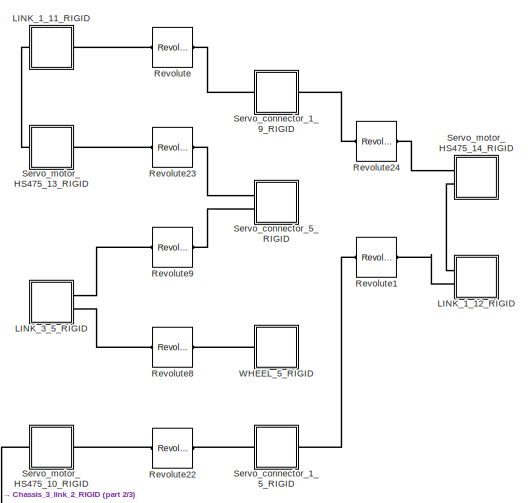
[diagram: root canvas - part 1/3, top center region]
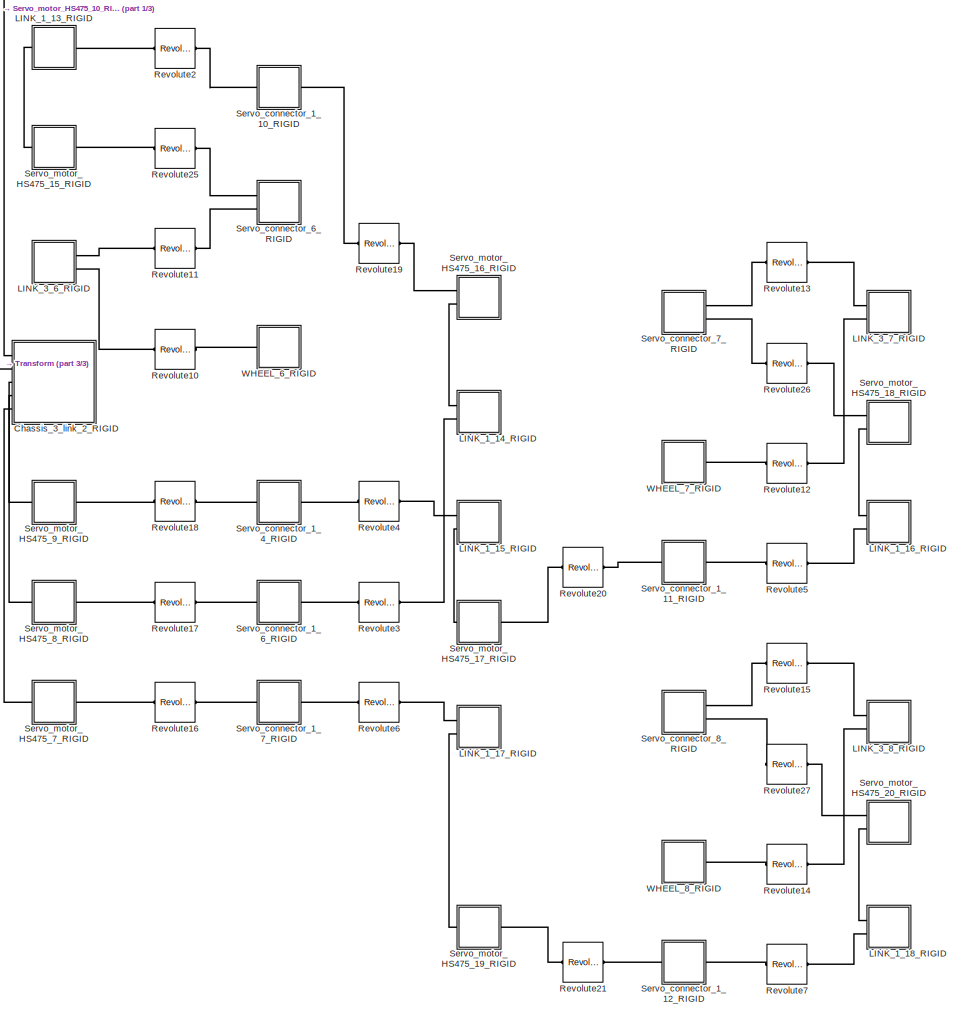
[diagram: root canvas - part 2/3, full width, middle band]
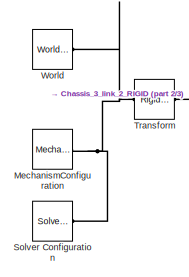
[diagram: root canvas - part 3/3, middle left region]
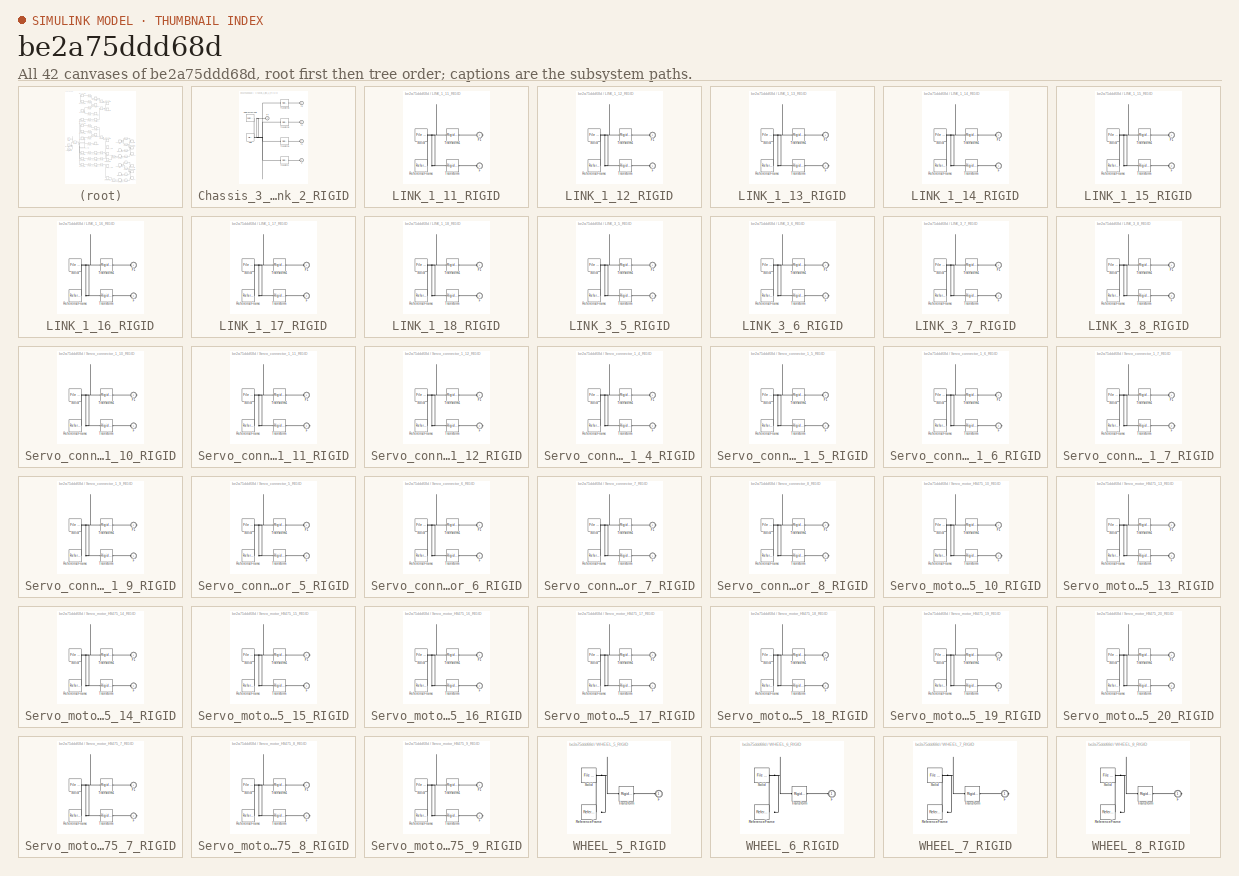
[diagram: thumbnail index - all 42 canvases of the model, root first then tree order]
MODEL slx_be2a75ddd68d
KIND model
CONFIG AbsTol = auto
CONFIG EnableMultiTasking = off
CONFIG FixedStep = auto
CONFIG MaxStep = auto
CONFIG MinStep = auto
CONFIG RelTol = 1e-3
CONFIG SampleTimeConstraint = Unconstrained
CONFIG Solver = VariableStepAuto
CONFIG SolverName = VariableStepAuto
CONFIG StartTime = 0.0
CONFIG StopTime = 10.0
WORKSPACE source: external: MATLAB File  (data not in archive)
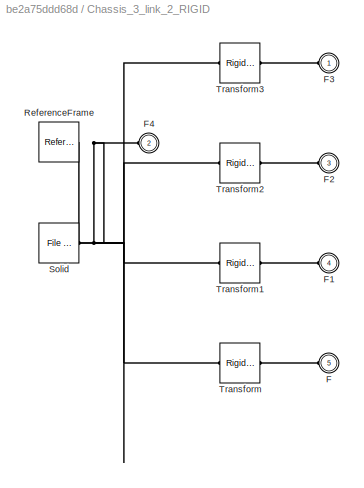
BLOCK [SubSystem] Chassis_3_link_2_RIGID
  Ports = [0, 0, 0, 0, 0, 5]
  RequestExecContextInheritance = off
BLOCK [PMIOPort] Chassis_3_link_2_RIGID/F
  Port = 5
  Side = Left
BLOCK [PMIOPort] Chassis_3_link_2_RIGID/F1
  Port = 4
  Side = Left
BLOCK [PMIOPort] Chassis_3_link_2_RIGID/F2
  Port = 3
  Side = Left
BLOCK [PMIOPort] Chassis_3_link_2_RIGID/F3
  Side = Left
BLOCK [PMIOPort] Chassis_3_link_2_RIGID/F4
  Port = 2
  Side = Left
BLOCK [Reference] Chassis_3_link_2_RIGID/ReferenceFrame  REF=sm_lib/Frames and
Transforms/Reference
Frame
  Ports = [0, 0, 0, 0, 0, 0, 1]
  SourceBlock = sm_lib/Frames and\nTransforms/Reference\nFrame
  SourceProductBaseCode = MS
  SourceProductName = Simscape Multibody
  SourceType = Reference\nFrame
BLOCK [Reference] Chassis_3_link_2_RIGID/Solid  REF=sm_lib/Body Elements/File Solid
  Ports = [0, 0, 0, 0, 0, 0, 1]
  SourceBlock = sm_lib/Body Elements/File Solid
  SourceProductBaseCode = MS
  SourceProductName = Simscape Multibody
  SourceType = File Solid
BLOCK [Reference] Chassis_3_link_2_RIGID/Transform  REF=sm_lib/Frames and
Transforms/Rigid
Transform
  Ports = [0, 0, 0, 0, 0, 1, 1]
  SourceBlock = sm_lib/Frames and\nTransforms/Rigid\nTransform
  SourceProductBaseCode = MS
  SourceProductName = Simscape Multibody
  SourceType = Rigid\nTransform
BLOCK [Reference] Chassis_3_link_2_RIGID/Transform1  REF=sm_lib/Frames and
Transforms/Rigid
Transform
  Ports = [0, 0, 0, 0, 0, 1, 1]
  SourceBlock = sm_lib/Frames and\nTransforms/Rigid\nTransform
  SourceProductBaseCode = MS
  SourceProductName = Simscape Multibody
  SourceType = Rigid\nTransform
BLOCK [Reference] Chassis_3_link_2_RIGID/Transform2  REF=sm_lib/Frames and
Transforms/Rigid
Transform
  Ports = [0, 0, 0, 0, 0, 1, 1]
  SourceBlock = sm_lib/Frames and\nTransforms/Rigid\nTransform
  SourceProductBaseCode = MS
  SourceProductName = Simscape Multibody
  SourceType = Rigid\nTransform
BLOCK [Reference] Chassis_3_link_2_RIGID/Transform3  REF=sm_lib/Frames and
Transforms/Rigid
Transform
  Ports = [0, 0, 0, 0, 0, 1, 1]
  SourceBlock = sm_lib/Frames and\nTransforms/Rigid\nTransform
  SourceProductBaseCode = MS
  SourceProductName = Simscape Multibody
  SourceType = Rigid\nTransform
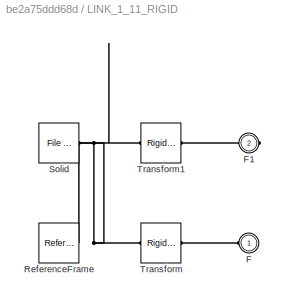
BLOCK [SubSystem] LINK_1_11_RIGID
  Ports = [0, 0, 0, 0, 0, 1, 1]
  RequestExecContextInheritance = off
BLOCK [PMIOPort] LINK_1_11_RIGID/F
  Side = Left
BLOCK [PMIOPort] LINK_1_11_RIGID/F1
  Port = 2
  Side = Right
BLOCK [Reference] LINK_1_11_RIGID/ReferenceFrame  REF=sm_lib/Frames and
Transforms/Reference
Frame
  Ports = [0, 0, 0, 0, 0, 0, 1]
  SourceBlock = sm_lib/Frames and\nTransforms/Reference\nFrame
  SourceProductBaseCode = MS
  SourceProductName = Simscape Multibody
  SourceType = Reference\nFrame
BLOCK [Reference] LINK_1_11_RIGID/Solid  REF=sm_lib/Body Elements/File Solid
  Ports = [0, 0, 0, 0, 0, 0, 1]
  SourceBlock = sm_lib/Body Elements/File Solid
  SourceProductBaseCode = MS
  SourceProductName = Simscape Multibody
  SourceType = File Solid
BLOCK [Reference] LINK_1_11_RIGID/Transform  REF=sm_lib/Frames and
Transforms/Rigid
Transform
  Ports = [0, 0, 0, 0, 0, 1, 1]
  SourceBlock = sm_lib/Frames and\nTransforms/Rigid\nTransform
  SourceProductBaseCode = MS
  SourceProductName = Simscape Multibody
  SourceType = Rigid\nTransform
BLOCK [Reference] LINK_1_11_RIGID/Transform1  REF=sm_lib/Frames and
Transforms/Rigid
Transform
  Ports = [0, 0, 0, 0, 0, 1, 1]
  SourceBlock = sm_lib/Frames and\nTransforms/Rigid\nTransform
  SourceProductBaseCode = MS
  SourceProductName = Simscape Multibody
  SourceType = Rigid\nTransform
BLOCK [SubSystem] LINK_1_12_RIGID
  Ports = [0, 0, 0, 0, 0, 2]
  RequestExecContextInheritance = off
BLOCK [PMIOPort] LINK_1_12_RIGID/F
  Side = Left
BLOCK [PMIOPort] LINK_1_12_RIGID/F1
  Port = 2
  Side = Left
BLOCK [Reference] LINK_1_12_RIGID/ReferenceFrame  REF=sm_lib/Frames and
Transforms/Reference
Frame
  Ports = [0, 0, 0, 0, 0, 0, 1]
  SourceBlock = sm_lib/Frames and\nTransforms/Reference\nFrame
  SourceProductBaseCode = MS
  SourceProductName = Simscape Multibody
  SourceType = Reference\nFrame
BLOCK [Reference] LINK_1_12_RIGID/Solid  REF=sm_lib/Body Elements/File Solid
  Ports = [0, 0, 0, 0, 0, 0, 1]
  SourceBlock = sm_lib/Body Elements/File Solid
  SourceProductBaseCode = MS
  SourceProductName = Simscape Multibody
  SourceType = File Solid
BLOCK [Reference] LINK_1_12_RIGID/Transform  REF=sm_lib/Frames and
Transforms/Rigid
Transform
  Ports = [0, 0, 0, 0, 0, 1, 1]
  SourceBlock = sm_lib/Frames and\nTransforms/Rigid\nTransform
  SourceProductBaseCode = MS
  SourceProductName = Simscape Multibody
  SourceType = Rigid\nTransform
BLOCK [Reference] LINK_1_12_RIGID/Transform1  REF=sm_lib/Frames and
Transforms/Rigid
Transform
  Ports = [0, 0, 0, 0, 0, 1, 1]
  SourceBlock = sm_lib/Frames and\nTransforms/Rigid\nTransform
  SourceProductBaseCode = MS
  SourceProductName = Simscape Multibody
  SourceType = Rigid\nTransform
BLOCK [SubSystem] LINK_1_13_RIGID
  Ports = [0, 0, 0, 0, 0, 1, 1]
  RequestExecContextInheritance = off
BLOCK [PMIOPort] LINK_1_13_RIGID/F
  Port = 2
  Side = Right
BLOCK [PMIOPort] LINK_1_13_RIGID/F1
  Side = Left
BLOCK [Reference] LINK_1_13_RIGID/ReferenceFrame  REF=sm_lib/Frames and
Transforms/Reference
Frame
  Ports = [0, 0, 0, 0, 0, 0, 1]
  SourceBlock = sm_lib/Frames and\nTransforms/Reference\nFrame
  SourceProductBaseCode = MS
  SourceProductName = Simscape Multibody
  SourceType = Reference\nFrame
BLOCK [Reference] LINK_1_13_RIGID/Solid  REF=sm_lib/Body Elements/File Solid
  Ports = [0, 0, 0, 0, 0, 0, 1]
  SourceBlock = sm_lib/Body Elements/File Solid
  SourceProductBaseCode = MS
  SourceProductName = Simscape Multibody
  SourceType = File Solid
BLOCK [Reference] LINK_1_13_RIGID/Transform  REF=sm_lib/Frames and
Transforms/Rigid
Transform
  Ports = [0, 0, 0, 0, 0, 1, 1]
  SourceBlock = sm_lib/Frames and\nTransforms/Rigid\nTransform
  SourceProductBaseCode = MS
  SourceProductName = Simscape Multibody
  SourceType = Rigid\nTransform
BLOCK [Reference] LINK_1_13_RIGID/Transform1  REF=sm_lib/Frames and
Transforms/Rigid
Transform
  Ports = [0, 0, 0, 0, 0, 1, 1]
  SourceBlock = sm_lib/Frames and\nTransforms/Rigid\nTransform
  SourceProductBaseCode = MS
  SourceProductName = Simscape Multibody
  SourceType = Rigid\nTransform
BLOCK [SubSystem] LINK_1_14_RIGID
  Ports = [0, 0, 0, 0, 0, 2]
  RequestExecContextInheritance = off
BLOCK [PMIOPort] LINK_1_14_RIGID/F
  Side = Left
BLOCK [PMIOPort] LINK_1_14_RIGID/F1
  Port = 2
  Side = Left
BLOCK [Reference] LINK_1_14_RIGID/ReferenceFrame  REF=sm_lib/Frames and
Transforms/Reference
Frame
  Ports = [0, 0, 0, 0, 0, 0, 1]
  SourceBlock = sm_lib/Frames and\nTransforms/Reference\nFrame
  SourceProductBaseCode = MS
  SourceProductName = Simscape Multibody
  SourceType = Reference\nFrame
BLOCK [Reference] LINK_1_14_RIGID/Solid  REF=sm_lib/Body Elements/File Solid
  Ports = [0, 0, 0, 0, 0, 0, 1]
  SourceBlock = sm_lib/Body Elements/File Solid
  SourceProductBaseCode = MS
  SourceProductName = Simscape Multibody
  SourceType = File Solid
BLOCK [Reference] LINK_1_14_RIGID/Transform  REF=sm_lib/Frames and
Transforms/Rigid
Transform
  Ports = [0, 0, 0, 0, 0, 1, 1]
  SourceBlock = sm_lib/Frames and\nTransforms/Rigid\nTransform
  SourceProductBaseCode = MS
  SourceProductName = Simscape Multibody
  SourceType = Rigid\nTransform
BLOCK [Reference] LINK_1_14_RIGID/Transform1  REF=sm_lib/Frames and
Transforms/Rigid
Transform
  Ports = [0, 0, 0, 0, 0, 1, 1]
  SourceBlock = sm_lib/Frames and\nTransforms/Rigid\nTransform
  SourceProductBaseCode = MS
  SourceProductName = Simscape Multibody
  SourceType = Rigid\nTransform
BLOCK [SubSystem] LINK_1_15_RIGID
  Ports = [0, 0, 0, 0, 0, 2]
  RequestExecContextInheritance = off
BLOCK [PMIOPort] LINK_1_15_RIGID/F
  Port = 2
  Side = Left
BLOCK [PMIOPort] LINK_1_15_RIGID/F1
  Side = Left
BLOCK [Reference] LINK_1_15_RIGID/ReferenceFrame  REF=sm_lib/Frames and
Transforms/Reference
Frame
  Ports = [0, 0, 0, 0, 0, 0, 1]
  SourceBlock = sm_lib/Frames and\nTransforms/Reference\nFrame
  SourceProductBaseCode = MS
  SourceProductName = Simscape Multibody
  SourceType = Reference\nFrame
BLOCK [Reference] LINK_1_15_RIGID/Solid  REF=sm_lib/Body Elements/File Solid
  Ports = [0, 0, 0, 0, 0, 0, 1]
  SourceBlock = sm_lib/Body Elements/File Solid
  SourceProductBaseCode = MS
  SourceProductName = Simscape Multibody
  SourceType = File Solid
BLOCK [Reference] LINK_1_15_RIGID/Transform  REF=sm_lib/Frames and
Transforms/Rigid
Transform
  Ports = [0, 0, 0, 0, 0, 1, 1]
  SourceBlock = sm_lib/Frames and\nTransforms/Rigid\nTransform
  SourceProductBaseCode = MS
  SourceProductName = Simscape Multibody
  SourceType = Rigid\nTransform
BLOCK [Reference] LINK_1_15_RIGID/Transform1  REF=sm_lib/Frames and
Transforms/Rigid
Transform
  Ports = [0, 0, 0, 0, 0, 1, 1]
  SourceBlock = sm_lib/Frames and\nTransforms/Rigid\nTransform
  SourceProductBaseCode = MS
  SourceProductName = Simscape Multibody
  SourceType = Rigid\nTransform
BLOCK [SubSystem] LINK_1_16_RIGID
  Ports = [0, 0, 0, 0, 0, 2]
  RequestExecContextInheritance = off
BLOCK [PMIOPort] LINK_1_16_RIGID/F
  Port = 2
  Side = Left
BLOCK [PMIOPort] LINK_1_16_RIGID/F1
  Side = Left
BLOCK [Reference] LINK_1_16_RIGID/ReferenceFrame  REF=sm_lib/Frames and
Transforms/Reference
Frame
  Ports = [0, 0, 0, 0, 0, 0, 1]
  SourceBlock = sm_lib/Frames and\nTransforms/Reference\nFrame
  SourceProductBaseCode = MS
  SourceProductName = Simscape Multibody
  SourceType = Reference\nFrame
BLOCK [Reference] LINK_1_16_RIGID/Solid  REF=sm_lib/Body Elements/File Solid
  Ports = [0, 0, 0, 0, 0, 0, 1]
  SourceBlock = sm_lib/Body Elements/File Solid
  SourceProductBaseCode = MS
  SourceProductName = Simscape Multibody
  SourceType = File Solid
BLOCK [Reference] LINK_1_16_RIGID/Transform  REF=sm_lib/Frames and
Transforms/Rigid
Transform
  Ports = [0, 0, 0, 0, 0, 1, 1]
  SourceBlock = sm_lib/Frames and\nTransforms/Rigid\nTransform
  SourceProductBaseCode = MS
  SourceProductName = Simscape Multibody
  SourceType = Rigid\nTransform
BLOCK [Reference] LINK_1_16_RIGID/Transform1  REF=sm_lib/Frames and
Transforms/Rigid
Transform
  Ports = [0, 0, 0, 0, 0, 1, 1]
  SourceBlock = sm_lib/Frames and\nTransforms/Rigid\nTransform
  SourceProductBaseCode = MS
  SourceProductName = Simscape Multibody
  SourceType = Rigid\nTransform
BLOCK [SubSystem] LINK_1_17_RIGID
  Ports = [0, 0, 0, 0, 0, 2]
  RequestExecContextInheritance = off
BLOCK [PMIOPort] LINK_1_17_RIGID/F
  Port = 2
  Side = Left
BLOCK [PMIOPort] LINK_1_17_RIGID/F1
  Side = Left
BLOCK [Reference] LINK_1_17_RIGID/ReferenceFrame  REF=sm_lib/Frames and
Transforms/Reference
Frame
  Ports = [0, 0, 0, 0, 0, 0, 1]
  SourceBlock = sm_lib/Frames and\nTransforms/Reference\nFrame
  SourceProductBaseCode = MS
  SourceProductName = Simscape Multibody
  SourceType = Reference\nFrame
BLOCK [Reference] LINK_1_17_RIGID/Solid  REF=sm_lib/Body Elements/File Solid
  Ports = [0, 0, 0, 0, 0, 0, 1]
  SourceBlock = sm_lib/Body Elements/File Solid
  SourceProductBaseCode = MS
  SourceProductName = Simscape Multibody
  SourceType = File Solid
BLOCK [Reference] LINK_1_17_RIGID/Transform  REF=sm_lib/Frames and
Transforms/Rigid
Transform
  Ports = [0, 0, 0, 0, 0, 1, 1]
  SourceBlock = sm_lib/Frames and\nTransforms/Rigid\nTransform
  SourceProductBaseCode = MS
  SourceProductName = Simscape Multibody
  SourceType = Rigid\nTransform
BLOCK [Reference] LINK_1_17_RIGID/Transform1  REF=sm_lib/Frames and
Transforms/Rigid
Transform
  Ports = [0, 0, 0, 0, 0, 1, 1]
  SourceBlock = sm_lib/Frames and\nTransforms/Rigid\nTransform
  SourceProductBaseCode = MS
  SourceProductName = Simscape Multibody
  SourceType = Rigid\nTransform
BLOCK [SubSystem] LINK_1_18_RIGID
  Ports = [0, 0, 0, 0, 0, 2]
  RequestExecContextInheritance = off
BLOCK [PMIOPort] LINK_1_18_RIGID/F
  Port = 2
  Side = Left
BLOCK [PMIOPort] LINK_1_18_RIGID/F1
  Side = Left
BLOCK [Reference] LINK_1_18_RIGID/ReferenceFrame  REF=sm_lib/Frames and
Transforms/Reference
Frame
  Ports = [0, 0, 0, 0, 0, 0, 1]
  SourceBlock = sm_lib/Frames and\nTransforms/Reference\nFrame
  SourceProductBaseCode = MS
  SourceProductName = Simscape Multibody
  SourceType = Reference\nFrame
BLOCK [Reference] LINK_1_18_RIGID/Solid  REF=sm_lib/Body Elements/File Solid
  Ports = [0, 0, 0, 0, 0, 0, 1]
  SourceBlock = sm_lib/Body Elements/File Solid
  SourceProductBaseCode = MS
  SourceProductName = Simscape Multibody
  SourceType = File Solid
BLOCK [Reference] LINK_1_18_RIGID/Transform  REF=sm_lib/Frames and
Transforms/Rigid
Transform
  Ports = [0, 0, 0, 0, 0, 1, 1]
  SourceBlock = sm_lib/Frames and\nTransforms/Rigid\nTransform
  SourceProductBaseCode = MS
  SourceProductName = Simscape Multibody
  SourceType = Rigid\nTransform
BLOCK [Reference] LINK_1_18_RIGID/Transform1  REF=sm_lib/Frames and
Transforms/Rigid
Transform
  Ports = [0, 0, 0, 0, 0, 1, 1]
  SourceBlock = sm_lib/Frames and\nTransforms/Rigid\nTransform
  SourceProductBaseCode = MS
  SourceProductName = Simscape Multibody
  SourceType = Rigid\nTransform
BLOCK [SubSystem] LINK_3_5_RIGID
  Ports = [0, 0, 0, 0, 0, 0, 2]
  RequestExecContextInheritance = off
BLOCK [PMIOPort] LINK_3_5_RIGID/F
  Port = 2
  Side = Right
BLOCK [PMIOPort] LINK_3_5_RIGID/F1
  Side = Right
BLOCK [Reference] LINK_3_5_RIGID/ReferenceFrame  REF=sm_lib/Frames and
Transforms/Reference
Frame
  Ports = [0, 0, 0, 0, 0, 0, 1]
  SourceBlock = sm_lib/Frames and\nTransforms/Reference\nFrame
  SourceProductBaseCode = MS
  SourceProductName = Simscape Multibody
  SourceType = Reference\nFrame
BLOCK [Reference] LINK_3_5_RIGID/Solid  REF=sm_lib/Body Elements/File Solid
  Ports = [0, 0, 0, 0, 0, 0, 1]
  SourceBlock = sm_lib/Body Elements/File Solid
  SourceProductBaseCode = MS
  SourceProductName = Simscape Multibody
  SourceType = File Solid
BLOCK [Reference] LINK_3_5_RIGID/Transform  REF=sm_lib/Frames and
Transforms/Rigid
Transform
  Ports = [0, 0, 0, 0, 0, 1, 1]
  SourceBlock = sm_lib/Frames and\nTransforms/Rigid\nTransform
  SourceProductBaseCode = MS
  SourceProductName = Simscape Multibody
  SourceType = Rigid\nTransform
BLOCK [Reference] LINK_3_5_RIGID/Transform1  REF=sm_lib/Frames and
Transforms/Rigid
Transform
  Ports = [0, 0, 0, 0, 0, 1, 1]
  SourceBlock = sm_lib/Frames and\nTransforms/Rigid\nTransform
  SourceProductBaseCode = MS
  SourceProductName = Simscape Multibody
  SourceType = Rigid\nTransform
BLOCK [SubSystem] LINK_3_6_RIGID
  Ports = [0, 0, 0, 0, 0, 0, 2]
  RequestExecContextInheritance = off
BLOCK [PMIOPort] LINK_3_6_RIGID/F
  Port = 2
  Side = Right
BLOCK [PMIOPort] LINK_3_6_RIGID/F1
  Side = Right
BLOCK [Reference] LINK_3_6_RIGID/ReferenceFrame  REF=sm_lib/Frames and
Transforms/Reference
Frame
  Ports = [0, 0, 0, 0, 0, 0, 1]
  SourceBlock = sm_lib/Frames and\nTransforms/Reference\nFrame
  SourceProductBaseCode = MS
  SourceProductName = Simscape Multibody
  SourceType = Reference\nFrame
BLOCK [Reference] LINK_3_6_RIGID/Solid  REF=sm_lib/Body Elements/File Solid
  Ports = [0, 0, 0, 0, 0, 0, 1]
  SourceBlock = sm_lib/Body Elements/File Solid
  SourceProductBaseCode = MS
  SourceProductName = Simscape Multibody
  SourceType = File Solid
BLOCK [Reference] LINK_3_6_RIGID/Transform  REF=sm_lib/Frames and
Transforms/Rigid
Transform
  Ports = [0, 0, 0, 0, 0, 1, 1]
  SourceBlock = sm_lib/Frames and\nTransforms/Rigid\nTransform
  SourceProductBaseCode = MS
  SourceProductName = Simscape Multibody
  SourceType = Rigid\nTransform
BLOCK [Reference] LINK_3_6_RIGID/Transform1  REF=sm_lib/Frames and
Transforms/Rigid
Transform
  Ports = [0, 0, 0, 0, 0, 1, 1]
  SourceBlock = sm_lib/Frames and\nTransforms/Rigid\nTransform
  SourceProductBaseCode = MS
  SourceProductName = Simscape Multibody
  SourceType = Rigid\nTransform
BLOCK [SubSystem] LINK_3_7_RIGID
  Ports = [0, 0, 0, 0, 0, 2]
  RequestExecContextInheritance = off
BLOCK [PMIOPort] LINK_3_7_RIGID/F
  Port = 2
  Side = Left
BLOCK [PMIOPort] LINK_3_7_RIGID/F1
  Side = Left
BLOCK [Reference] LINK_3_7_RIGID/ReferenceFrame  REF=sm_lib/Frames and
Transforms/Reference
Frame
  Ports = [0, 0, 0, 0, 0, 0, 1]
  SourceBlock = sm_lib/Frames and\nTransforms/Reference\nFrame
  SourceProductBaseCode = MS
  SourceProductName = Simscape Multibody
  SourceType = Reference\nFrame
BLOCK [Reference] LINK_3_7_RIGID/Solid  REF=sm_lib/Body Elements/File Solid
  Ports = [0, 0, 0, 0, 0, 0, 1]
  SourceBlock = sm_lib/Body Elements/File Solid
  SourceProductBaseCode = MS
  SourceProductName = Simscape Multibody
  SourceType = File Solid
BLOCK [Reference] LINK_3_7_RIGID/Transform  REF=sm_lib/Frames and
Transforms/Rigid
Transform
  Ports = [0, 0, 0, 0, 0, 1, 1]
  SourceBlock = sm_lib/Frames and\nTransforms/Rigid\nTransform
  SourceProductBaseCode = MS
  SourceProductName = Simscape Multibody
  SourceType = Rigid\nTransform
BLOCK [Reference] LINK_3_7_RIGID/Transform1  REF=sm_lib/Frames and
Transforms/Rigid
Transform
  Ports = [0, 0, 0, 0, 0, 1, 1]
  SourceBlock = sm_lib/Frames and\nTransforms/Rigid\nTransform
  SourceProductBaseCode = MS
  SourceProductName = Simscape Multibody
  SourceType = Rigid\nTransform
BLOCK [SubSystem] LINK_3_8_RIGID
  Ports = [0, 0, 0, 0, 0, 2]
  RequestExecContextInheritance = off
BLOCK [PMIOPort] LINK_3_8_RIGID/F
  Port = 2
  Side = Left
BLOCK [PMIOPort] LINK_3_8_RIGID/F1
  Side = Left
BLOCK [Reference] LINK_3_8_RIGID/ReferenceFrame  REF=sm_lib/Frames and
Transforms/Reference
Frame
  Ports = [0, 0, 0, 0, 0, 0, 1]
  SourceBlock = sm_lib/Frames and\nTransforms/Reference\nFrame
  SourceProductBaseCode = MS
  SourceProductName = Simscape Multibody
  SourceType = Reference\nFrame
BLOCK [Reference] LINK_3_8_RIGID/Solid  REF=sm_lib/Body Elements/File Solid
  Ports = [0, 0, 0, 0, 0, 0, 1]
  SourceBlock = sm_lib/Body Elements/File Solid
  SourceProductBaseCode = MS
  SourceProductName = Simscape Multibody
  SourceType = File Solid
BLOCK [Reference] LINK_3_8_RIGID/Transform  REF=sm_lib/Frames and
Transforms/Rigid
Transform
  Ports = [0, 0, 0, 0, 0, 1, 1]
  SourceBlock = sm_lib/Frames and\nTransforms/Rigid\nTransform
  SourceProductBaseCode = MS
  SourceProductName = Simscape Multibody
  SourceType = Rigid\nTransform
BLOCK [Reference] LINK_3_8_RIGID/Transform1  REF=sm_lib/Frames and
Transforms/Rigid
Transform
  Ports = [0, 0, 0, 0, 0, 1, 1]
  SourceBlock = sm_lib/Frames and\nTransforms/Rigid\nTransform
  SourceProductBaseCode = MS
  SourceProductName = Simscape Multibody
  SourceType = Rigid\nTransform
BLOCK [Reference] MechanismConfiguration  REF=sm_lib/Utilities/Mechanism
Configuration
  Ports = [0, 0, 0, 0, 0, 0, 1]
  SourceBlock = sm_lib/Utilities/Mechanism\nConfiguration
  SourceProductBaseCode = MS
  SourceProductName = Simscape Multibody
  SourceType = Mechanism\nConfiguration
BLOCK [Reference] Revolute  REF=sm_lib/Joints/Revolute Joint
  Ports = [0, 0, 0, 0, 0, 1, 1]
  SourceBlock = sm_lib/Joints/Revolute Joint
  SourceProductBaseCode = MS
  SourceProductName = Simscape Multibody
  SourceType = Revolute Joint
BLOCK [Reference] Revolute1  REF=sm_lib/Joints/Revolute Joint
  Ports = [0, 0, 0, 0, 0, 1, 1]
  SourceBlock = sm_lib/Joints/Revolute Joint
  SourceProductBaseCode = MS
  SourceProductName = Simscape Multibody
  SourceType = Revolute Joint
BLOCK [Reference] Revolute10  REF=sm_lib/Joints/Revolute Joint
  Ports = [0, 0, 0, 0, 0, 1, 1]
  SourceBlock = sm_lib/Joints/Revolute Joint
  SourceProductBaseCode = MS
  SourceProductName = Simscape Multibody
  SourceType = Revolute Joint
BLOCK [Reference] Revolute11  REF=sm_lib/Joints/Revolute Joint
  Ports = [0, 0, 0, 0, 0, 1, 1]
  SourceBlock = sm_lib/Joints/Revolute Joint
  SourceProductBaseCode = MS
  SourceProductName = Simscape Multibody
  SourceType = Revolute Joint
BLOCK [Reference] Revolute12  REF=sm_lib/Joints/Revolute Joint
  Ports = [0, 0, 0, 0, 0, 1, 1]
  SourceBlock = sm_lib/Joints/Revolute Joint
  SourceProductBaseCode = MS
  SourceProductName = Simscape Multibody
  SourceType = Revolute Joint
BLOCK [Reference] Revolute13  REF=sm_lib/Joints/Revolute Joint
  Ports = [0, 0, 0, 0, 0, 1, 1]
  SourceBlock = sm_lib/Joints/Revolute Joint
  SourceProductBaseCode = MS
  SourceProductName = Simscape Multibody
  SourceType = Revolute Joint
BLOCK [Reference] Revolute14  REF=sm_lib/Joints/Revolute Joint
  Ports = [0, 0, 0, 0, 0, 1, 1]
  SourceBlock = sm_lib/Joints/Revolute Joint
  SourceProductBaseCode = MS
  SourceProductName = Simscape Multibody
  SourceType = Revolute Joint
BLOCK [Reference] Revolute15  REF=sm_lib/Joints/Revolute Joint
  Ports = [0, 0, 0, 0, 0, 1, 1]
  SourceBlock = sm_lib/Joints/Revolute Joint
  SourceProductBaseCode = MS
  SourceProductName = Simscape Multibody
  SourceType = Revolute Joint
BLOCK [Reference] Revolute16  REF=sm_lib/Joints/Revolute Joint
  Ports = [0, 0, 0, 0, 0, 1, 1]
  SourceBlock = sm_lib/Joints/Revolute Joint
  SourceProductBaseCode = MS
  SourceProductName = Simscape Multibody
  SourceType = Revolute Joint
BLOCK [Reference] Revolute17  REF=sm_lib/Joints/Revolute Joint
  Ports = [0, 0, 0, 0, 0, 1, 1]
  SourceBlock = sm_lib/Joints/Revolute Joint
  SourceProductBaseCode = MS
  SourceProductName = Simscape Multibody
  SourceType = Revolute Joint
BLOCK [Reference] Revolute18  REF=sm_lib/Joints/Revolute Joint
  Ports = [0, 0, 0, 0, 0, 1, 1]
  SourceBlock = sm_lib/Joints/Revolute Joint
  SourceProductBaseCode = MS
  SourceProductName = Simscape Multibody
  SourceType = Revolute Joint
BLOCK [Reference] Revolute19  REF=sm_lib/Joints/Revolute Joint
  Ports = [0, 0, 0, 0, 0, 1, 1]
  SourceBlock = sm_lib/Joints/Revolute Joint
  SourceProductBaseCode = MS
  SourceProductName = Simscape Multibody
  SourceType = Revolute Joint
BLOCK [Reference] Revolute2  REF=sm_lib/Joints/Revolute Joint
  Ports = [0, 0, 0, 0, 0, 1, 1]
  SourceBlock = sm_lib/Joints/Revolute Joint
  SourceProductBaseCode = MS
  SourceProductName = Simscape Multibody
  SourceType = Revolute Joint
BLOCK [Reference] Revolute20  REF=sm_lib/Joints/Revolute Joint
  Ports = [0, 0, 0, 0, 0, 1, 1]
  SourceBlock = sm_lib/Joints/Revolute Joint
  SourceProductBaseCode = MS
  SourceProductName = Simscape Multibody
  SourceType = Revolute Joint
BLOCK [Reference] Revolute21  REF=sm_lib/Joints/Revolute Joint
  Ports = [0, 0, 0, 0, 0, 1, 1]
  SourceBlock = sm_lib/Joints/Revolute Joint
  SourceProductBaseCode = MS
  SourceProductName = Simscape Multibody
  SourceType = Revolute Joint
BLOCK [Reference] Revolute22  REF=sm_lib/Joints/Revolute Joint
  Ports = [0, 0, 0, 0, 0, 1, 1]
  SourceBlock = sm_lib/Joints/Revolute Joint
  SourceProductBaseCode = MS
  SourceProductName = Simscape Multibody
  SourceType = Revolute Joint
BLOCK [Reference] Revolute23  REF=sm_lib/Joints/Revolute Joint
  Ports = [0, 0, 0, 0, 0, 1, 1]
  SourceBlock = sm_lib/Joints/Revolute Joint
  SourceProductBaseCode = MS
  SourceProductName = Simscape Multibody
  SourceType = Revolute Joint
BLOCK [Reference] Revolute24  REF=sm_lib/Joints/Revolute Joint
  Ports = [0, 0, 0, 0, 0, 1, 1]
  SourceBlock = sm_lib/Joints/Revolute Joint
  SourceProductBaseCode = MS
  SourceProductName = Simscape Multibody
  SourceType = Revolute Joint
BLOCK [Reference] Revolute25  REF=sm_lib/Joints/Revolute Joint
  Ports = [0, 0, 0, 0, 0, 1, 1]
  SourceBlock = sm_lib/Joints/Revolute Joint
  SourceProductBaseCode = MS
  SourceProductName = Simscape Multibody
  SourceType = Revolute Joint
BLOCK [Reference] Revolute26  REF=sm_lib/Joints/Revolute Joint
  Ports = [0, 0, 0, 0, 0, 1, 1]
  SourceBlock = sm_lib/Joints/Revolute Joint
  SourceProductBaseCode = MS
  SourceProductName = Simscape Multibody
  SourceType = Revolute Joint
BLOCK [Reference] Revolute27  REF=sm_lib/Joints/Revolute Joint
  Ports = [0, 0, 0, 0, 0, 1, 1]
  SourceBlock = sm_lib/Joints/Revolute Joint
  SourceProductBaseCode = MS
  SourceProductName = Simscape Multibody
  SourceType = Revolute Joint
BLOCK [Reference] Revolute3  REF=sm_lib/Joints/Revolute Joint
  Ports = [0, 0, 0, 0, 0, 1, 1]
  SourceBlock = sm_lib/Joints/Revolute Joint
  SourceProductBaseCode = MS
  SourceProductName = Simscape Multibody
  SourceType = Revolute Joint
BLOCK [Reference] Revolute4  REF=sm_lib/Joints/Revolute Joint
  Ports = [0, 0, 0, 0, 0, 1, 1]
  SourceBlock = sm_lib/Joints/Revolute Joint
  SourceProductBaseCode = MS
  SourceProductName = Simscape Multibody
  SourceType = Revolute Joint
BLOCK [Reference] Revolute5  REF=sm_lib/Joints/Revolute Joint
  Ports = [0, 0, 0, 0, 0, 1, 1]
  SourceBlock = sm_lib/Joints/Revolute Joint
  SourceProductBaseCode = MS
  SourceProductName = Simscape Multibody
  SourceType = Revolute Joint
BLOCK [Reference] Revolute6  REF=sm_lib/Joints/Revolute Joint
  Ports = [0, 0, 0, 0, 0, 1, 1]
  SourceBlock = sm_lib/Joints/Revolute Joint
  SourceProductBaseCode = MS
  SourceProductName = Simscape Multibody
  SourceType = Revolute Joint
BLOCK [Reference] Revolute7  REF=sm_lib/Joints/Revolute Joint
  Ports = [0, 0, 0, 0, 0, 1, 1]
  SourceBlock = sm_lib/Joints/Revolute Joint
  SourceProductBaseCode = MS
  SourceProductName = Simscape Multibody
  SourceType = Revolute Joint
BLOCK [Reference] Revolute8  REF=sm_lib/Joints/Revolute Joint
  Ports = [0, 0, 0, 0, 0, 1, 1]
  SourceBlock = sm_lib/Joints/Revolute Joint
  SourceProductBaseCode = MS
  SourceProductName = Simscape Multibody
  SourceType = Revolute Joint
BLOCK [Reference] Revolute9  REF=sm_lib/Joints/Revolute Joint
  Ports = [0, 0, 0, 0, 0, 1, 1]
  SourceBlock = sm_lib/Joints/Revolute Joint
  SourceProductBaseCode = MS
  SourceProductName = Simscape Multibody
  SourceType = Revolute Joint
BLOCK [SubSystem] Servo_connector_1_10_RIGID
  Ports = [0, 0, 0, 0, 0, 1, 1]
  RequestExecContextInheritance = off
BLOCK [PMIOPort] Servo_connector_1_10_RIGID/F
  Side = Left
BLOCK [PMIOPort] Servo_connector_1_10_RIGID/F1
  Port = 2
  Side = Right
BLOCK [Reference] Servo_connector_1_10_RIGID/ReferenceFrame  REF=sm_lib/Frames and
Transforms/Reference
Frame
  Ports = [0, 0, 0, 0, 0, 0, 1]
  SourceBlock = sm_lib/Frames and\nTransforms/Reference\nFrame
  SourceProductBaseCode = MS
  SourceProductName = Simscape Multibody
  SourceType = Reference\nFrame
BLOCK [Reference] Servo_connector_1_10_RIGID/Solid  REF=sm_lib/Body Elements/File Solid
  Ports = [0, 0, 0, 0, 0, 0, 1]
  SourceBlock = sm_lib/Body Elements/File Solid
  SourceProductBaseCode = MS
  SourceProductName = Simscape Multibody
  SourceType = File Solid
BLOCK [Reference] Servo_connector_1_10_RIGID/Transform  REF=sm_lib/Frames and
Transforms/Rigid
Transform
  Ports = [0, 0, 0, 0, 0, 1, 1]
  SourceBlock = sm_lib/Frames and\nTransforms/Rigid\nTransform
  SourceProductBaseCode = MS
  SourceProductName = Simscape Multibody
  SourceType = Rigid\nTransform
BLOCK [Reference] Servo_connector_1_10_RIGID/Transform1  REF=sm_lib/Frames and
Transforms/Rigid
Transform
  Ports = [0, 0, 0, 0, 0, 1, 1]
  SourceBlock = sm_lib/Frames and\nTransforms/Rigid\nTransform
  SourceProductBaseCode = MS
  SourceProductName = Simscape Multibody
  SourceType = Rigid\nTransform
BLOCK [SubSystem] Servo_connector_1_11_RIGID
  Ports = [0, 0, 0, 0, 0, 1, 1]
  RequestExecContextInheritance = off
BLOCK [PMIOPort] Servo_connector_1_11_RIGID/F
  Port = 2
  Side = Right
BLOCK [PMIOPort] Servo_connector_1_11_RIGID/F1
  Side = Left
BLOCK [Reference] Servo_connector_1_11_RIGID/ReferenceFrame  REF=sm_lib/Frames and
Transforms/Reference
Frame
  Ports = [0, 0, 0, 0, 0, 0, 1]
  SourceBlock = sm_lib/Frames and\nTransforms/Reference\nFrame
  SourceProductBaseCode = MS
  SourceProductName = Simscape Multibody
  SourceType = Reference\nFrame
BLOCK [Reference] Servo_connector_1_11_RIGID/Solid  REF=sm_lib/Body Elements/File Solid
  Ports = [0, 0, 0, 0, 0, 0, 1]
  SourceBlock = sm_lib/Body Elements/File Solid
  SourceProductBaseCode = MS
  SourceProductName = Simscape Multibody
  SourceType = File Solid
BLOCK [Reference] Servo_connector_1_11_RIGID/Transform  REF=sm_lib/Frames and
Transforms/Rigid
Transform
  Ports = [0, 0, 0, 0, 0, 1, 1]
  SourceBlock = sm_lib/Frames and\nTransforms/Rigid\nTransform
  SourceProductBaseCode = MS
  SourceProductName = Simscape Multibody
  SourceType = Rigid\nTransform
BLOCK [Reference] Servo_connector_1_11_RIGID/Transform1  REF=sm_lib/Frames and
Transforms/Rigid
Transform
  Ports = [0, 0, 0, 0, 0, 1, 1]
  SourceBlock = sm_lib/Frames and\nTransforms/Rigid\nTransform
  SourceProductBaseCode = MS
  SourceProductName = Simscape Multibody
  SourceType = Rigid\nTransform
BLOCK [SubSystem] Servo_connector_1_12_RIGID
  Ports = [0, 0, 0, 0, 0, 1, 1]
  RequestExecContextInheritance = off
BLOCK [PMIOPort] Servo_connector_1_12_RIGID/F
  Port = 2
  Side = Right
BLOCK [PMIOPort] Servo_connector_1_12_RIGID/F1
  Side = Left
BLOCK [Reference] Servo_connector_1_12_RIGID/ReferenceFrame  REF=sm_lib/Frames and
Transforms/Reference
Frame
  Ports = [0, 0, 0, 0, 0, 0, 1]
  SourceBlock = sm_lib/Frames and\nTransforms/Reference\nFrame
  SourceProductBaseCode = MS
  SourceProductName = Simscape Multibody
  SourceType = Reference\nFrame
BLOCK [Reference] Servo_connector_1_12_RIGID/Solid  REF=sm_lib/Body Elements/File Solid
  Ports = [0, 0, 0, 0, 0, 0, 1]
  SourceBlock = sm_lib/Body Elements/File Solid
  SourceProductBaseCode = MS
  SourceProductName = Simscape Multibody
  SourceType = File Solid
BLOCK [Reference] Servo_connector_1_12_RIGID/Transform  REF=sm_lib/Frames and
Transforms/Rigid
Transform
  Ports = [0, 0, 0, 0, 0, 1, 1]
  SourceBlock = sm_lib/Frames and\nTransforms/Rigid\nTransform
  SourceProductBaseCode = MS
  SourceProductName = Simscape Multibody
  SourceType = Rigid\nTransform
BLOCK [Reference] Servo_connector_1_12_RIGID/Transform1  REF=sm_lib/Frames and
Transforms/Rigid
Transform
  Ports = [0, 0, 0, 0, 0, 1, 1]
  SourceBlock = sm_lib/Frames and\nTransforms/Rigid\nTransform
  SourceProductBaseCode = MS
  SourceProductName = Simscape Multibody
  SourceType = Rigid\nTransform
BLOCK [SubSystem] Servo_connector_1_4_RIGID
  Ports = [0, 0, 0, 0, 0, 1, 1]
  RequestExecContextInheritance = off
BLOCK [PMIOPort] Servo_connector_1_4_RIGID/F
  Port = 2
  Side = Right
BLOCK [PMIOPort] Servo_connector_1_4_RIGID/F1
  Side = Left
BLOCK [Reference] Servo_connector_1_4_RIGID/ReferenceFrame  REF=sm_lib/Frames and
Transforms/Reference
Frame
  Ports = [0, 0, 0, 0, 0, 0, 1]
  SourceBlock = sm_lib/Frames and\nTransforms/Reference\nFrame
  SourceProductBaseCode = MS
  SourceProductName = Simscape Multibody
  SourceType = Reference\nFrame
BLOCK [Reference] Servo_connector_1_4_RIGID/Solid  REF=sm_lib/Body Elements/File Solid
  Ports = [0, 0, 0, 0, 0, 0, 1]
  SourceBlock = sm_lib/Body Elements/File Solid
  SourceProductBaseCode = MS
  SourceProductName = Simscape Multibody
  SourceType = File Solid
BLOCK [Reference] Servo_connector_1_4_RIGID/Transform  REF=sm_lib/Frames and
Transforms/Rigid
Transform
  Ports = [0, 0, 0, 0, 0, 1, 1]
  SourceBlock = sm_lib/Frames and\nTransforms/Rigid\nTransform
  SourceProductBaseCode = MS
  SourceProductName = Simscape Multibody
  SourceType = Rigid\nTransform
BLOCK [Reference] Servo_connector_1_4_RIGID/Transform1  REF=sm_lib/Frames and
Transforms/Rigid
Transform
  Ports = [0, 0, 0, 0, 0, 1, 1]
  SourceBlock = sm_lib/Frames and\nTransforms/Rigid\nTransform
  SourceProductBaseCode = MS
  SourceProductName = Simscape Multibody
  SourceType = Rigid\nTransform
BLOCK [SubSystem] Servo_connector_1_5_RIGID
  Ports = [0, 0, 0, 0, 0, 1, 1]
  RequestExecContextInheritance = off
BLOCK [PMIOPort] Servo_connector_1_5_RIGID/F
  Port = 2
  Side = Right
BLOCK [PMIOPort] Servo_connector_1_5_RIGID/F1
  Side = Left
BLOCK [Reference] Servo_connector_1_5_RIGID/ReferenceFrame  REF=sm_lib/Frames and
Transforms/Reference
Frame
  Ports = [0, 0, 0, 0, 0, 0, 1]
  SourceBlock = sm_lib/Frames and\nTransforms/Reference\nFrame
  SourceProductBaseCode = MS
  SourceProductName = Simscape Multibody
  SourceType = Reference\nFrame
BLOCK [Reference] Servo_connector_1_5_RIGID/Solid  REF=sm_lib/Body Elements/File Solid
  Ports = [0, 0, 0, 0, 0, 0, 1]
  SourceBlock = sm_lib/Body Elements/File Solid
  SourceProductBaseCode = MS
  SourceProductName = Simscape Multibody
  SourceType = File Solid
BLOCK [Reference] Servo_connector_1_5_RIGID/Transform  REF=sm_lib/Frames and
Transforms/Rigid
Transform
  Ports = [0, 0, 0, 0, 0, 1, 1]
  SourceBlock = sm_lib/Frames and\nTransforms/Rigid\nTransform
  SourceProductBaseCode = MS
  SourceProductName = Simscape Multibody
  SourceType = Rigid\nTransform
BLOCK [Reference] Servo_connector_1_5_RIGID/Transform1  REF=sm_lib/Frames and
Transforms/Rigid
Transform
  Ports = [0, 0, 0, 0, 0, 1, 1]
  SourceBlock = sm_lib/Frames and\nTransforms/Rigid\nTransform
  SourceProductBaseCode = MS
  SourceProductName = Simscape Multibody
  SourceType = Rigid\nTransform
BLOCK [SubSystem] Servo_connector_1_6_RIGID
  Ports = [0, 0, 0, 0, 0, 1, 1]
  RequestExecContextInheritance = off
BLOCK [PMIOPort] Servo_connector_1_6_RIGID/F
  Port = 2
  Side = Right
BLOCK [PMIOPort] Servo_connector_1_6_RIGID/F1
  Side = Left
BLOCK [Reference] Servo_connector_1_6_RIGID/ReferenceFrame  REF=sm_lib/Frames and
Transforms/Reference
Frame
  Ports = [0, 0, 0, 0, 0, 0, 1]
  SourceBlock = sm_lib/Frames and\nTransforms/Reference\nFrame
  SourceProductBaseCode = MS
  SourceProductName = Simscape Multibody
  SourceType = Reference\nFrame
BLOCK [Reference] Servo_connector_1_6_RIGID/Solid  REF=sm_lib/Body Elements/File Solid
  Ports = [0, 0, 0, 0, 0, 0, 1]
  SourceBlock = sm_lib/Body Elements/File Solid
  SourceProductBaseCode = MS
  SourceProductName = Simscape Multibody
  SourceType = File Solid
BLOCK [Reference] Servo_connector_1_6_RIGID/Transform  REF=sm_lib/Frames and
Transforms/Rigid
Transform
  Ports = [0, 0, 0, 0, 0, 1, 1]
  SourceBlock = sm_lib/Frames and\nTransforms/Rigid\nTransform
  SourceProductBaseCode = MS
  SourceProductName = Simscape Multibody
  SourceType = Rigid\nTransform
BLOCK [Reference] Servo_connector_1_6_RIGID/Transform1  REF=sm_lib/Frames and
Transforms/Rigid
Transform
  Ports = [0, 0, 0, 0, 0, 1, 1]
  SourceBlock = sm_lib/Frames and\nTransforms/Rigid\nTransform
  SourceProductBaseCode = MS
  SourceProductName = Simscape Multibody
  SourceType = Rigid\nTransform
BLOCK [SubSystem] Servo_connector_1_7_RIGID
  Ports = [0, 0, 0, 0, 0, 1, 1]
  RequestExecContextInheritance = off
BLOCK [PMIOPort] Servo_connector_1_7_RIGID/F
  Port = 2
  Side = Right
BLOCK [PMIOPort] Servo_connector_1_7_RIGID/F1
  Side = Left
BLOCK [Reference] Servo_connector_1_7_RIGID/ReferenceFrame  REF=sm_lib/Frames and
Transforms/Reference
Frame
  Ports = [0, 0, 0, 0, 0, 0, 1]
  SourceBlock = sm_lib/Frames and\nTransforms/Reference\nFrame
  SourceProductBaseCode = MS
  SourceProductName = Simscape Multibody
  SourceType = Reference\nFrame
BLOCK [Reference] Servo_connector_1_7_RIGID/Solid  REF=sm_lib/Body Elements/File Solid
  Ports = [0, 0, 0, 0, 0, 0, 1]
  SourceBlock = sm_lib/Body Elements/File Solid
  SourceProductBaseCode = MS
  SourceProductName = Simscape Multibody
  SourceType = File Solid
BLOCK [Reference] Servo_connector_1_7_RIGID/Transform  REF=sm_lib/Frames and
Transforms/Rigid
Transform
  Ports = [0, 0, 0, 0, 0, 1, 1]
  SourceBlock = sm_lib/Frames and\nTransforms/Rigid\nTransform
  SourceProductBaseCode = MS
  SourceProductName = Simscape Multibody
  SourceType = Rigid\nTransform
BLOCK [Reference] Servo_connector_1_7_RIGID/Transform1  REF=sm_lib/Frames and
Transforms/Rigid
Transform
  Ports = [0, 0, 0, 0, 0, 1, 1]
  SourceBlock = sm_lib/Frames and\nTransforms/Rigid\nTransform
  SourceProductBaseCode = MS
  SourceProductName = Simscape Multibody
  SourceType = Rigid\nTransform
BLOCK [SubSystem] Servo_connector_1_9_RIGID
  Ports = [0, 0, 0, 0, 0, 1, 1]
  RequestExecContextInheritance = off
BLOCK [PMIOPort] Servo_connector_1_9_RIGID/F
  Side = Left
BLOCK [PMIOPort] Servo_connector_1_9_RIGID/F1
  Port = 2
  Side = Right
BLOCK [Reference] Servo_connector_1_9_RIGID/ReferenceFrame  REF=sm_lib/Frames and
Transforms/Reference
Frame
  Ports = [0, 0, 0, 0, 0, 0, 1]
  SourceBlock = sm_lib/Frames and\nTransforms/Reference\nFrame
  SourceProductBaseCode = MS
  SourceProductName = Simscape Multibody
  SourceType = Reference\nFrame
BLOCK [Reference] Servo_connector_1_9_RIGID/Solid  REF=sm_lib/Body Elements/File Solid
  Ports = [0, 0, 0, 0, 0, 0, 1]
  SourceBlock = sm_lib/Body Elements/File Solid
  SourceProductBaseCode = MS
  SourceProductName = Simscape Multibody
  SourceType = File Solid
BLOCK [Reference] Servo_connector_1_9_RIGID/Transform  REF=sm_lib/Frames and
Transforms/Rigid
Transform
  Ports = [0, 0, 0, 0, 0, 1, 1]
  SourceBlock = sm_lib/Frames and\nTransforms/Rigid\nTransform
  SourceProductBaseCode = MS
  SourceProductName = Simscape Multibody
  SourceType = Rigid\nTransform
BLOCK [Reference] Servo_connector_1_9_RIGID/Transform1  REF=sm_lib/Frames and
Transforms/Rigid
Transform
  Ports = [0, 0, 0, 0, 0, 1, 1]
  SourceBlock = sm_lib/Frames and\nTransforms/Rigid\nTransform
  SourceProductBaseCode = MS
  SourceProductName = Simscape Multibody
  SourceType = Rigid\nTransform
BLOCK [SubSystem] Servo_connector_5_RIGID
  Ports = [0, 0, 0, 0, 0, 2]
  RequestExecContextInheritance = off
BLOCK [PMIOPort] Servo_connector_5_RIGID/F
  Port = 2
  Side = Left
BLOCK [PMIOPort] Servo_connector_5_RIGID/F1
  Side = Left
BLOCK [Reference] Servo_connector_5_RIGID/ReferenceFrame  REF=sm_lib/Frames and
Transforms/Reference
Frame
  Ports = [0, 0, 0, 0, 0, 0, 1]
  SourceBlock = sm_lib/Frames and\nTransforms/Reference\nFrame
  SourceProductBaseCode = MS
  SourceProductName = Simscape Multibody
  SourceType = Reference\nFrame
BLOCK [Reference] Servo_connector_5_RIGID/Solid  REF=sm_lib/Body Elements/File Solid
  Ports = [0, 0, 0, 0, 0, 0, 1]
  SourceBlock = sm_lib/Body Elements/File Solid
  SourceProductBaseCode = MS
  SourceProductName = Simscape Multibody
  SourceType = File Solid
BLOCK [Reference] Servo_connector_5_RIGID/Transform  REF=sm_lib/Frames and
Transforms/Rigid
Transform
  Ports = [0, 0, 0, 0, 0, 1, 1]
  SourceBlock = sm_lib/Frames and\nTransforms/Rigid\nTransform
  SourceProductBaseCode = MS
  SourceProductName = Simscape Multibody
  SourceType = Rigid\nTransform
BLOCK [Reference] Servo_connector_5_RIGID/Transform1  REF=sm_lib/Frames and
Transforms/Rigid
Transform
  Ports = [0, 0, 0, 0, 0, 1, 1]
  SourceBlock = sm_lib/Frames and\nTransforms/Rigid\nTransform
  SourceProductBaseCode = MS
  SourceProductName = Simscape Multibody
  SourceType = Rigid\nTransform
BLOCK [SubSystem] Servo_connector_6_RIGID
  Ports = [0, 0, 0, 0, 0, 2]
  RequestExecContextInheritance = off
BLOCK [PMIOPort] Servo_connector_6_RIGID/F
  Port = 2
  Side = Left
BLOCK [PMIOPort] Servo_connector_6_RIGID/F1
  Side = Left
BLOCK [Reference] Servo_connector_6_RIGID/ReferenceFrame  REF=sm_lib/Frames and
Transforms/Reference
Frame
  Ports = [0, 0, 0, 0, 0, 0, 1]
  SourceBlock = sm_lib/Frames and\nTransforms/Reference\nFrame
  SourceProductBaseCode = MS
  SourceProductName = Simscape Multibody
  SourceType = Reference\nFrame
BLOCK [Reference] Servo_connector_6_RIGID/Solid  REF=sm_lib/Body Elements/File Solid
  Ports = [0, 0, 0, 0, 0, 0, 1]
  SourceBlock = sm_lib/Body Elements/File Solid
  SourceProductBaseCode = MS
  SourceProductName = Simscape Multibody
  SourceType = File Solid
BLOCK [Reference] Servo_connector_6_RIGID/Transform  REF=sm_lib/Frames and
Transforms/Rigid
Transform
  Ports = [0, 0, 0, 0, 0, 1, 1]
  SourceBlock = sm_lib/Frames and\nTransforms/Rigid\nTransform
  SourceProductBaseCode = MS
  SourceProductName = Simscape Multibody
  SourceType = Rigid\nTransform
BLOCK [Reference] Servo_connector_6_RIGID/Transform1  REF=sm_lib/Frames and
Transforms/Rigid
Transform
  Ports = [0, 0, 0, 0, 0, 1, 1]
  SourceBlock = sm_lib/Frames and\nTransforms/Rigid\nTransform
  SourceProductBaseCode = MS
  SourceProductName = Simscape Multibody
  SourceType = Rigid\nTransform
BLOCK [SubSystem] Servo_connector_7_RIGID
  Ports = [0, 0, 0, 0, 0, 0, 2]
  RequestExecContextInheritance = off
BLOCK [PMIOPort] Servo_connector_7_RIGID/F
  Side = Right
BLOCK [PMIOPort] Servo_connector_7_RIGID/F1
  Port = 2
  Side = Right
BLOCK [Reference] Servo_connector_7_RIGID/ReferenceFrame  REF=sm_lib/Frames and
Transforms/Reference
Frame
  Ports = [0, 0, 0, 0, 0, 0, 1]
  SourceBlock = sm_lib/Frames and\nTransforms/Reference\nFrame
  SourceProductBaseCode = MS
  SourceProductName = Simscape Multibody
  SourceType = Reference\nFrame
BLOCK [Reference] Servo_connector_7_RIGID/Solid  REF=sm_lib/Body Elements/File Solid
  Ports = [0, 0, 0, 0, 0, 0, 1]
  SourceBlock = sm_lib/Body Elements/File Solid
  SourceProductBaseCode = MS
  SourceProductName = Simscape Multibody
  SourceType = File Solid
BLOCK [Reference] Servo_connector_7_RIGID/Transform  REF=sm_lib/Frames and
Transforms/Rigid
Transform
  Ports = [0, 0, 0, 0, 0, 1, 1]
  SourceBlock = sm_lib/Frames and\nTransforms/Rigid\nTransform
  SourceProductBaseCode = MS
  SourceProductName = Simscape Multibody
  SourceType = Rigid\nTransform
BLOCK [Reference] Servo_connector_7_RIGID/Transform1  REF=sm_lib/Frames and
Transforms/Rigid
Transform
  Ports = [0, 0, 0, 0, 0, 1, 1]
  SourceBlock = sm_lib/Frames and\nTransforms/Rigid\nTransform
  SourceProductBaseCode = MS
  SourceProductName = Simscape Multibody
  SourceType = Rigid\nTransform
BLOCK [SubSystem] Servo_connector_8_RIGID
  Ports = [0, 0, 0, 0, 0, 0, 2]
  RequestExecContextInheritance = off
BLOCK [PMIOPort] Servo_connector_8_RIGID/F
  Side = Right
BLOCK [PMIOPort] Servo_connector_8_RIGID/F1
  Port = 2
  Side = Right
BLOCK [Reference] Servo_connector_8_RIGID/ReferenceFrame  REF=sm_lib/Frames and
Transforms/Reference
Frame
  Ports = [0, 0, 0, 0, 0, 0, 1]
  SourceBlock = sm_lib/Frames and\nTransforms/Reference\nFrame
  SourceProductBaseCode = MS
  SourceProductName = Simscape Multibody
  SourceType = Reference\nFrame
BLOCK [Reference] Servo_connector_8_RIGID/Solid  REF=sm_lib/Body Elements/File Solid
  Ports = [0, 0, 0, 0, 0, 0, 1]
  SourceBlock = sm_lib/Body Elements/File Solid
  SourceProductBaseCode = MS
  SourceProductName = Simscape Multibody
  SourceType = File Solid
BLOCK [Reference] Servo_connector_8_RIGID/Transform  REF=sm_lib/Frames and
Transforms/Rigid
Transform
  Ports = [0, 0, 0, 0, 0, 1, 1]
  SourceBlock = sm_lib/Frames and\nTransforms/Rigid\nTransform
  SourceProductBaseCode = MS
  SourceProductName = Simscape Multibody
  SourceType = Rigid\nTransform
BLOCK [Reference] Servo_connector_8_RIGID/Transform1  REF=sm_lib/Frames and
Transforms/Rigid
Transform
  Ports = [0, 0, 0, 0, 0, 1, 1]
  SourceBlock = sm_lib/Frames and\nTransforms/Rigid\nTransform
  SourceProductBaseCode = MS
  SourceProductName = Simscape Multibody
  SourceType = Rigid\nTransform
BLOCK [SubSystem] Servo_motor_HS475_10_RIGID
  Ports = [0, 0, 0, 0, 0, 1, 1]
  RequestExecContextInheritance = off
BLOCK [PMIOPort] Servo_motor_HS475_10_RIGID/F
  Port = 2
  Side = Right
BLOCK [PMIOPort] Servo_motor_HS475_10_RIGID/F1
  Side = Left
BLOCK [Reference] Servo_motor_HS475_10_RIGID/ReferenceFrame  REF=sm_lib/Frames and
Transforms/Reference
Frame
  Ports = [0, 0, 0, 0, 0, 0, 1]
  SourceBlock = sm_lib/Frames and\nTransforms/Reference\nFrame
  SourceProductBaseCode = MS
  SourceProductName = Simscape Multibody
  SourceType = Reference\nFrame
BLOCK [Reference] Servo_motor_HS475_10_RIGID/Solid  REF=sm_lib/Body Elements/File Solid
  Ports = [0, 0, 0, 0, 0, 0, 1]
  SourceBlock = sm_lib/Body Elements/File Solid
  SourceProductBaseCode = MS
  SourceProductName = Simscape Multibody
  SourceType = File Solid
BLOCK [Reference] Servo_motor_HS475_10_RIGID/Transform  REF=sm_lib/Frames and
Transforms/Rigid
Transform
  Ports = [0, 0, 0, 0, 0, 1, 1]
  SourceBlock = sm_lib/Frames and\nTransforms/Rigid\nTransform
  SourceProductBaseCode = MS
  SourceProductName = Simscape Multibody
  SourceType = Rigid\nTransform
BLOCK [Reference] Servo_motor_HS475_10_RIGID/Transform1  REF=sm_lib/Frames and
Transforms/Rigid
Transform
  Ports = [0, 0, 0, 0, 0, 1, 1]
  SourceBlock = sm_lib/Frames and\nTransforms/Rigid\nTransform
  SourceProductBaseCode = MS
  SourceProductName = Simscape Multibody
  SourceType = Rigid\nTransform
BLOCK [SubSystem] Servo_motor_HS475_13_RIGID
  Ports = [0, 0, 0, 0, 0, 1, 1]
  RequestExecContextInheritance = off
BLOCK [PMIOPort] Servo_motor_HS475_13_RIGID/F
  Side = Left
BLOCK [PMIOPort] Servo_motor_HS475_13_RIGID/F1
  Port = 2
  Side = Right
BLOCK [Reference] Servo_motor_HS475_13_RIGID/ReferenceFrame  REF=sm_lib/Frames and
Transforms/Reference
Frame
  Ports = [0, 0, 0, 0, 0, 0, 1]
  SourceBlock = sm_lib/Frames and\nTransforms/Reference\nFrame
  SourceProductBaseCode = MS
  SourceProductName = Simscape Multibody
  SourceType = Reference\nFrame
BLOCK [Reference] Servo_motor_HS475_13_RIGID/Solid  REF=sm_lib/Body Elements/File Solid
  Ports = [0, 0, 0, 0, 0, 0, 1]
  SourceBlock = sm_lib/Body Elements/File Solid
  SourceProductBaseCode = MS
  SourceProductName = Simscape Multibody
  SourceType = File Solid
BLOCK [Reference] Servo_motor_HS475_13_RIGID/Transform  REF=sm_lib/Frames and
Transforms/Rigid
Transform
  Ports = [0, 0, 0, 0, 0, 1, 1]
  SourceBlock = sm_lib/Frames and\nTransforms/Rigid\nTransform
  SourceProductBaseCode = MS
  SourceProductName = Simscape Multibody
  SourceType = Rigid\nTransform
BLOCK [Reference] Servo_motor_HS475_13_RIGID/Transform1  REF=sm_lib/Frames and
Transforms/Rigid
Transform
  Ports = [0, 0, 0, 0, 0, 1, 1]
  SourceBlock = sm_lib/Frames and\nTransforms/Rigid\nTransform
  SourceProductBaseCode = MS
  SourceProductName = Simscape Multibody
  SourceType = Rigid\nTransform
BLOCK [SubSystem] Servo_motor_HS475_14_RIGID
  Ports = [0, 0, 0, 0, 0, 2]
  RequestExecContextInheritance = off
BLOCK [PMIOPort] Servo_motor_HS475_14_RIGID/F
  Port = 2
  Side = Left
BLOCK [PMIOPort] Servo_motor_HS475_14_RIGID/F1
  Side = Left
BLOCK [Reference] Servo_motor_HS475_14_RIGID/ReferenceFrame  REF=sm_lib/Frames and
Transforms/Reference
Frame
  Ports = [0, 0, 0, 0, 0, 0, 1]
  SourceBlock = sm_lib/Frames and\nTransforms/Reference\nFrame
  SourceProductBaseCode = MS
  SourceProductName = Simscape Multibody
  SourceType = Reference\nFrame
BLOCK [Reference] Servo_motor_HS475_14_RIGID/Solid  REF=sm_lib/Body Elements/File Solid
  Ports = [0, 0, 0, 0, 0, 0, 1]
  SourceBlock = sm_lib/Body Elements/File Solid
  SourceProductBaseCode = MS
  SourceProductName = Simscape Multibody
  SourceType = File Solid
BLOCK [Reference] Servo_motor_HS475_14_RIGID/Transform  REF=sm_lib/Frames and
Transforms/Rigid
Transform
  Ports = [0, 0, 0, 0, 0, 1, 1]
  SourceBlock = sm_lib/Frames and\nTransforms/Rigid\nTransform
  SourceProductBaseCode = MS
  SourceProductName = Simscape Multibody
  SourceType = Rigid\nTransform
BLOCK [Reference] Servo_motor_HS475_14_RIGID/Transform1  REF=sm_lib/Frames and
Transforms/Rigid
Transform
  Ports = [0, 0, 0, 0, 0, 1, 1]
  SourceBlock = sm_lib/Frames and\nTransforms/Rigid\nTransform
  SourceProductBaseCode = MS
  SourceProductName = Simscape Multibody
  SourceType = Rigid\nTransform
BLOCK [SubSystem] Servo_motor_HS475_15_RIGID
  Ports = [0, 0, 0, 0, 0, 1, 1]
  RequestExecContextInheritance = off
BLOCK [PMIOPort] Servo_motor_HS475_15_RIGID/F
  Side = Left
BLOCK [PMIOPort] Servo_motor_HS475_15_RIGID/F1
  Port = 2
  Side = Right
BLOCK [Reference] Servo_motor_HS475_15_RIGID/ReferenceFrame  REF=sm_lib/Frames and
Transforms/Reference
Frame
  Ports = [0, 0, 0, 0, 0, 0, 1]
  SourceBlock = sm_lib/Frames and\nTransforms/Reference\nFrame
  SourceProductBaseCode = MS
  SourceProductName = Simscape Multibody
  SourceType = Reference\nFrame
BLOCK [Reference] Servo_motor_HS475_15_RIGID/Solid  REF=sm_lib/Body Elements/File Solid
  Ports = [0, 0, 0, 0, 0, 0, 1]
  SourceBlock = sm_lib/Body Elements/File Solid
  SourceProductBaseCode = MS
  SourceProductName = Simscape Multibody
  SourceType = File Solid
BLOCK [Reference] Servo_motor_HS475_15_RIGID/Transform  REF=sm_lib/Frames and
Transforms/Rigid
Transform
  Ports = [0, 0, 0, 0, 0, 1, 1]
  SourceBlock = sm_lib/Frames and\nTransforms/Rigid\nTransform
  SourceProductBaseCode = MS
  SourceProductName = Simscape Multibody
  SourceType = Rigid\nTransform
BLOCK [Reference] Servo_motor_HS475_15_RIGID/Transform1  REF=sm_lib/Frames and
Transforms/Rigid
Transform
  Ports = [0, 0, 0, 0, 0, 1, 1]
  SourceBlock = sm_lib/Frames and\nTransforms/Rigid\nTransform
  SourceProductBaseCode = MS
  SourceProductName = Simscape Multibody
  SourceType = Rigid\nTransform
BLOCK [SubSystem] Servo_motor_HS475_16_RIGID
  Ports = [0, 0, 0, 0, 0, 2]
  RequestExecContextInheritance = off
BLOCK [PMIOPort] Servo_motor_HS475_16_RIGID/F
  Port = 2
  Side = Left
BLOCK [PMIOPort] Servo_motor_HS475_16_RIGID/F1
  Side = Left
BLOCK [Reference] Servo_motor_HS475_16_RIGID/ReferenceFrame  REF=sm_lib/Frames and
Transforms/Reference
Frame
  Ports = [0, 0, 0, 0, 0, 0, 1]
  SourceBlock = sm_lib/Frames and\nTransforms/Reference\nFrame
  SourceProductBaseCode = MS
  SourceProductName = Simscape Multibody
  SourceType = Reference\nFrame
BLOCK [Reference] Servo_motor_HS475_16_RIGID/Solid  REF=sm_lib/Body Elements/File Solid
  Ports = [0, 0, 0, 0, 0, 0, 1]
  SourceBlock = sm_lib/Body Elements/File Solid
  SourceProductBaseCode = MS
  SourceProductName = Simscape Multibody
  SourceType = File Solid
BLOCK [Reference] Servo_motor_HS475_16_RIGID/Transform  REF=sm_lib/Frames and
Transforms/Rigid
Transform
  Ports = [0, 0, 0, 0, 0, 1, 1]
  SourceBlock = sm_lib/Frames and\nTransforms/Rigid\nTransform
  SourceProductBaseCode = MS
  SourceProductName = Simscape Multibody
  SourceType = Rigid\nTransform
BLOCK [Reference] Servo_motor_HS475_16_RIGID/Transform1  REF=sm_lib/Frames and
Transforms/Rigid
Transform
  Ports = [0, 0, 0, 0, 0, 1, 1]
  SourceBlock = sm_lib/Frames and\nTransforms/Rigid\nTransform
  SourceProductBaseCode = MS
  SourceProductName = Simscape Multibody
  SourceType = Rigid\nTransform
BLOCK [SubSystem] Servo_motor_HS475_17_RIGID
  Ports = [0, 0, 0, 0, 0, 1, 1]
  RequestExecContextInheritance = off
BLOCK [PMIOPort] Servo_motor_HS475_17_RIGID/F
  Side = Left
BLOCK [PMIOPort] Servo_motor_HS475_17_RIGID/F1
  Port = 2
  Side = Right
BLOCK [Reference] Servo_motor_HS475_17_RIGID/ReferenceFrame  REF=sm_lib/Frames and
Transforms/Reference
Frame
  Ports = [0, 0, 0, 0, 0, 0, 1]
  SourceBlock = sm_lib/Frames and\nTransforms/Reference\nFrame
  SourceProductBaseCode = MS
  SourceProductName = Simscape Multibody
  SourceType = Reference\nFrame
BLOCK [Reference] Servo_motor_HS475_17_RIGID/Solid  REF=sm_lib/Body Elements/File Solid
  Ports = [0, 0, 0, 0, 0, 0, 1]
  SourceBlock = sm_lib/Body Elements/File Solid
  SourceProductBaseCode = MS
  SourceProductName = Simscape Multibody
  SourceType = File Solid
BLOCK [Reference] Servo_motor_HS475_17_RIGID/Transform  REF=sm_lib/Frames and
Transforms/Rigid
Transform
  Ports = [0, 0, 0, 0, 0, 1, 1]
  SourceBlock = sm_lib/Frames and\nTransforms/Rigid\nTransform
  SourceProductBaseCode = MS
  SourceProductName = Simscape Multibody
  SourceType = Rigid\nTransform
BLOCK [Reference] Servo_motor_HS475_17_RIGID/Transform1  REF=sm_lib/Frames and
Transforms/Rigid
Transform
  Ports = [0, 0, 0, 0, 0, 1, 1]
  SourceBlock = sm_lib/Frames and\nTransforms/Rigid\nTransform
  SourceProductBaseCode = MS
  SourceProductName = Simscape Multibody
  SourceType = Rigid\nTransform
BLOCK [SubSystem] Servo_motor_HS475_18_RIGID
  Ports = [0, 0, 0, 0, 0, 2]
  RequestExecContextInheritance = off
BLOCK [PMIOPort] Servo_motor_HS475_18_RIGID/F
  Port = 2
  Side = Left
BLOCK [PMIOPort] Servo_motor_HS475_18_RIGID/F1
  Side = Left
BLOCK [Reference] Servo_motor_HS475_18_RIGID/ReferenceFrame  REF=sm_lib/Frames and
Transforms/Reference
Frame
  Ports = [0, 0, 0, 0, 0, 0, 1]
  SourceBlock = sm_lib/Frames and\nTransforms/Reference\nFrame
  SourceProductBaseCode = MS
  SourceProductName = Simscape Multibody
  SourceType = Reference\nFrame
BLOCK [Reference] Servo_motor_HS475_18_RIGID/Solid  REF=sm_lib/Body Elements/File Solid
  Ports = [0, 0, 0, 0, 0, 0, 1]
  SourceBlock = sm_lib/Body Elements/File Solid
  SourceProductBaseCode = MS
  SourceProductName = Simscape Multibody
  SourceType = File Solid
BLOCK [Reference] Servo_motor_HS475_18_RIGID/Transform  REF=sm_lib/Frames and
Transforms/Rigid
Transform
  Ports = [0, 0, 0, 0, 0, 1, 1]
  SourceBlock = sm_lib/Frames and\nTransforms/Rigid\nTransform
  SourceProductBaseCode = MS
  SourceProductName = Simscape Multibody
  SourceType = Rigid\nTransform
BLOCK [Reference] Servo_motor_HS475_18_RIGID/Transform1  REF=sm_lib/Frames and
Transforms/Rigid
Transform
  Ports = [0, 0, 0, 0, 0, 1, 1]
  SourceBlock = sm_lib/Frames and\nTransforms/Rigid\nTransform
  SourceProductBaseCode = MS
  SourceProductName = Simscape Multibody
  SourceType = Rigid\nTransform
BLOCK [SubSystem] Servo_motor_HS475_19_RIGID
  Ports = [0, 0, 0, 0, 0, 1, 1]
  RequestExecContextInheritance = off
BLOCK [PMIOPort] Servo_motor_HS475_19_RIGID/F
  Side = Left
BLOCK [PMIOPort] Servo_motor_HS475_19_RIGID/F1
  Port = 2
  Side = Right
BLOCK [Reference] Servo_motor_HS475_19_RIGID/ReferenceFrame  REF=sm_lib/Frames and
Transforms/Reference
Frame
  Ports = [0, 0, 0, 0, 0, 0, 1]
  SourceBlock = sm_lib/Frames and\nTransforms/Reference\nFrame
  SourceProductBaseCode = MS
  SourceProductName = Simscape Multibody
  SourceType = Reference\nFrame
BLOCK [Reference] Servo_motor_HS475_19_RIGID/Solid  REF=sm_lib/Body Elements/File Solid
  Ports = [0, 0, 0, 0, 0, 0, 1]
  SourceBlock = sm_lib/Body Elements/File Solid
  SourceProductBaseCode = MS
  SourceProductName = Simscape Multibody
  SourceType = File Solid
BLOCK [Reference] Servo_motor_HS475_19_RIGID/Transform  REF=sm_lib/Frames and
Transforms/Rigid
Transform
  Ports = [0, 0, 0, 0, 0, 1, 1]
  SourceBlock = sm_lib/Frames and\nTransforms/Rigid\nTransform
  SourceProductBaseCode = MS
  SourceProductName = Simscape Multibody
  SourceType = Rigid\nTransform
BLOCK [Reference] Servo_motor_HS475_19_RIGID/Transform1  REF=sm_lib/Frames and
Transforms/Rigid
Transform
  Ports = [0, 0, 0, 0, 0, 1, 1]
  SourceBlock = sm_lib/Frames and\nTransforms/Rigid\nTransform
  SourceProductBaseCode = MS
  SourceProductName = Simscape Multibody
  SourceType = Rigid\nTransform
BLOCK [SubSystem] Servo_motor_HS475_20_RIGID
  Ports = [0, 0, 0, 0, 0, 2]
  RequestExecContextInheritance = off
BLOCK [PMIOPort] Servo_motor_HS475_20_RIGID/F
  Port = 2
  Side = Left
BLOCK [PMIOPort] Servo_motor_HS475_20_RIGID/F1
  Side = Left
BLOCK [Reference] Servo_motor_HS475_20_RIGID/ReferenceFrame  REF=sm_lib/Frames and
Transforms/Reference
Frame
  Ports = [0, 0, 0, 0, 0, 0, 1]
  SourceBlock = sm_lib/Frames and\nTransforms/Reference\nFrame
  SourceProductBaseCode = MS
  SourceProductName = Simscape Multibody
  SourceType = Reference\nFrame
BLOCK [Reference] Servo_motor_HS475_20_RIGID/Solid  REF=sm_lib/Body Elements/File Solid
  Ports = [0, 0, 0, 0, 0, 0, 1]
  SourceBlock = sm_lib/Body Elements/File Solid
  SourceProductBaseCode = MS
  SourceProductName = Simscape Multibody
  SourceType = File Solid
BLOCK [Reference] Servo_motor_HS475_20_RIGID/Transform  REF=sm_lib/Frames and
Transforms/Rigid
Transform
  Ports = [0, 0, 0, 0, 0, 1, 1]
  SourceBlock = sm_lib/Frames and\nTransforms/Rigid\nTransform
  SourceProductBaseCode = MS
  SourceProductName = Simscape Multibody
  SourceType = Rigid\nTransform
BLOCK [Reference] Servo_motor_HS475_20_RIGID/Transform1  REF=sm_lib/Frames and
Transforms/Rigid
Transform
  Ports = [0, 0, 0, 0, 0, 1, 1]
  SourceBlock = sm_lib/Frames and\nTransforms/Rigid\nTransform
  SourceProductBaseCode = MS
  SourceProductName = Simscape Multibody
  SourceType = Rigid\nTransform
BLOCK [SubSystem] Servo_motor_HS475_7_RIGID
  Ports = [0, 0, 0, 0, 0, 1, 1]
  RequestExecContextInheritance = off
BLOCK [PMIOPort] Servo_motor_HS475_7_RIGID/F
  Port = 2
  Side = Right
BLOCK [PMIOPort] Servo_motor_HS475_7_RIGID/F1
  Side = Left
BLOCK [Reference] Servo_motor_HS475_7_RIGID/ReferenceFrame  REF=sm_lib/Frames and
Transforms/Reference
Frame
  Ports = [0, 0, 0, 0, 0, 0, 1]
  SourceBlock = sm_lib/Frames and\nTransforms/Reference\nFrame
  SourceProductBaseCode = MS
  SourceProductName = Simscape Multibody
  SourceType = Reference\nFrame
BLOCK [Reference] Servo_motor_HS475_7_RIGID/Solid  REF=sm_lib/Body Elements/File Solid
  Ports = [0, 0, 0, 0, 0, 0, 1]
  SourceBlock = sm_lib/Body Elements/File Solid
  SourceProductBaseCode = MS
  SourceProductName = Simscape Multibody
  SourceType = File Solid
BLOCK [Reference] Servo_motor_HS475_7_RIGID/Transform  REF=sm_lib/Frames and
Transforms/Rigid
Transform
  Ports = [0, 0, 0, 0, 0, 1, 1]
  SourceBlock = sm_lib/Frames and\nTransforms/Rigid\nTransform
  SourceProductBaseCode = MS
  SourceProductName = Simscape Multibody
  SourceType = Rigid\nTransform
BLOCK [Reference] Servo_motor_HS475_7_RIGID/Transform1  REF=sm_lib/Frames and
Transforms/Rigid
Transform
  Ports = [0, 0, 0, 0, 0, 1, 1]
  SourceBlock = sm_lib/Frames and\nTransforms/Rigid\nTransform
  SourceProductBaseCode = MS
  SourceProductName = Simscape Multibody
  SourceType = Rigid\nTransform
BLOCK [SubSystem] Servo_motor_HS475_8_RIGID
  Ports = [0, 0, 0, 0, 0, 1, 1]
  RequestExecContextInheritance = off
BLOCK [PMIOPort] Servo_motor_HS475_8_RIGID/F
  Port = 2
  Side = Right
BLOCK [PMIOPort] Servo_motor_HS475_8_RIGID/F1
  Side = Left
BLOCK [Reference] Servo_motor_HS475_8_RIGID/ReferenceFrame  REF=sm_lib/Frames and
Transforms/Reference
Frame
  Ports = [0, 0, 0, 0, 0, 0, 1]
  SourceBlock = sm_lib/Frames and\nTransforms/Reference\nFrame
  SourceProductBaseCode = MS
  SourceProductName = Simscape Multibody
  SourceType = Reference\nFrame
BLOCK [Reference] Servo_motor_HS475_8_RIGID/Solid  REF=sm_lib/Body Elements/File Solid
  Ports = [0, 0, 0, 0, 0, 0, 1]
  SourceBlock = sm_lib/Body Elements/File Solid
  SourceProductBaseCode = MS
  SourceProductName = Simscape Multibody
  SourceType = File Solid
BLOCK [Reference] Servo_motor_HS475_8_RIGID/Transform  REF=sm_lib/Frames and
Transforms/Rigid
Transform
  Ports = [0, 0, 0, 0, 0, 1, 1]
  SourceBlock = sm_lib/Frames and\nTransforms/Rigid\nTransform
  SourceProductBaseCode = MS
  SourceProductName = Simscape Multibody
  SourceType = Rigid\nTransform
BLOCK [Reference] Servo_motor_HS475_8_RIGID/Transform1  REF=sm_lib/Frames and
Transforms/Rigid
Transform
  Ports = [0, 0, 0, 0, 0, 1, 1]
  SourceBlock = sm_lib/Frames and\nTransforms/Rigid\nTransform
  SourceProductBaseCode = MS
  SourceProductName = Simscape Multibody
  SourceType = Rigid\nTransform
BLOCK [SubSystem] Servo_motor_HS475_9_RIGID
  Ports = [0, 0, 0, 0, 0, 1, 1]
  RequestExecContextInheritance = off
BLOCK [PMIOPort] Servo_motor_HS475_9_RIGID/F
  Port = 2
  Side = Right
BLOCK [PMIOPort] Servo_motor_HS475_9_RIGID/F1
  Side = Left
BLOCK [Reference] Servo_motor_HS475_9_RIGID/ReferenceFrame  REF=sm_lib/Frames and
Transforms/Reference
Frame
  Ports = [0, 0, 0, 0, 0, 0, 1]
  SourceBlock = sm_lib/Frames and\nTransforms/Reference\nFrame
  SourceProductBaseCode = MS
  SourceProductName = Simscape Multibody
  SourceType = Reference\nFrame
BLOCK [Reference] Servo_motor_HS475_9_RIGID/Solid  REF=sm_lib/Body Elements/File Solid
  Ports = [0, 0, 0, 0, 0, 0, 1]
  SourceBlock = sm_lib/Body Elements/File Solid
  SourceProductBaseCode = MS
  SourceProductName = Simscape Multibody
  SourceType = File Solid
BLOCK [Reference] Servo_motor_HS475_9_RIGID/Transform  REF=sm_lib/Frames and
Transforms/Rigid
Transform
  Ports = [0, 0, 0, 0, 0, 1, 1]
  SourceBlock = sm_lib/Frames and\nTransforms/Rigid\nTransform
  SourceProductBaseCode = MS
  SourceProductName = Simscape Multibody
  SourceType = Rigid\nTransform
BLOCK [Reference] Servo_motor_HS475_9_RIGID/Transform1  REF=sm_lib/Frames and
Transforms/Rigid
Transform
  Ports = [0, 0, 0, 0, 0, 1, 1]
  SourceBlock = sm_lib/Frames and\nTransforms/Rigid\nTransform
  SourceProductBaseCode = MS
  SourceProductName = Simscape Multibody
  SourceType = Rigid\nTransform
BLOCK [Reference] Solver Configuration  REF=nesl_utility/Solver
Configuration
  Ports = [0, 0, 0, 0, 0, 0, 1]
  SourceBlock = nesl_utility/Solver\nConfiguration
  SourceProductBaseCode = SS
  SourceProductName = Simscape
  SourceType = Solver\nConfiguration
BLOCK [Reference] Transform  REF=sm_lib/Frames and
Transforms/Rigid
Transform
  Ports = [0, 0, 0, 0, 0, 1, 1]
  SourceBlock = sm_lib/Frames and\nTransforms/Rigid\nTransform
  SourceProductBaseCode = MS
  SourceProductName = Simscape Multibody
  SourceType = Rigid\nTransform
BLOCK [SubSystem] WHEEL_5_RIGID
  Ports = [0, 0, 0, 0, 0, 1]
  RequestExecContextInheritance = off
BLOCK [PMIOPort] WHEEL_5_RIGID/F
  Side = Left
BLOCK [Reference] WHEEL_5_RIGID/ReferenceFrame  REF=sm_lib/Frames and
Transforms/Reference
Frame
  Ports = [0, 0, 0, 0, 0, 0, 1]
  SourceBlock = sm_lib/Frames and\nTransforms/Reference\nFrame
  SourceProductBaseCode = MS
  SourceProductName = Simscape Multibody
  SourceType = Reference\nFrame
BLOCK [Reference] WHEEL_5_RIGID/Solid  REF=sm_lib/Body Elements/File Solid
  Ports = [0, 0, 0, 0, 0, 0, 1]
  SourceBlock = sm_lib/Body Elements/File Solid
  SourceProductBaseCode = MS
  SourceProductName = Simscape Multibody
  SourceType = File Solid
BLOCK [Reference] WHEEL_5_RIGID/Transform  REF=sm_lib/Frames and
Transforms/Rigid
Transform
  Ports = [0, 0, 0, 0, 0, 1, 1]
  SourceBlock = sm_lib/Frames and\nTransforms/Rigid\nTransform
  SourceProductBaseCode = MS
  SourceProductName = Simscape Multibody
  SourceType = Rigid\nTransform
BLOCK [SubSystem] WHEEL_6_RIGID
  Ports = [0, 0, 0, 0, 0, 1]
  RequestExecContextInheritance = off
BLOCK [PMIOPort] WHEEL_6_RIGID/F
  Side = Left
BLOCK [Reference] WHEEL_6_RIGID/ReferenceFrame  REF=sm_lib/Frames and
Transforms/Reference
Frame
  Ports = [0, 0, 0, 0, 0, 0, 1]
  SourceBlock = sm_lib/Frames and\nTransforms/Reference\nFrame
  SourceProductBaseCode = MS
  SourceProductName = Simscape Multibody
  SourceType = Reference\nFrame
BLOCK [Reference] WHEEL_6_RIGID/Solid  REF=sm_lib/Body Elements/File Solid
  Ports = [0, 0, 0, 0, 0, 0, 1]
  SourceBlock = sm_lib/Body Elements/File Solid
  SourceProductBaseCode = MS
  SourceProductName = Simscape Multibody
  SourceType = File Solid
BLOCK [Reference] WHEEL_6_RIGID/Transform  REF=sm_lib/Frames and
Transforms/Rigid
Transform
  Ports = [0, 0, 0, 0, 0, 1, 1]
  SourceBlock = sm_lib/Frames and\nTransforms/Rigid\nTransform
  SourceProductBaseCode = MS
  SourceProductName = Simscape Multibody
  SourceType = Rigid\nTransform
BLOCK [SubSystem] WHEEL_7_RIGID
  Ports = [0, 0, 0, 0, 0, 0, 1]
  RequestExecContextInheritance = off
BLOCK [PMIOPort] WHEEL_7_RIGID/F
  Side = Right
BLOCK [Reference] WHEEL_7_RIGID/ReferenceFrame  REF=sm_lib/Frames and
Transforms/Reference
Frame
  Ports = [0, 0, 0, 0, 0, 0, 1]
  SourceBlock = sm_lib/Frames and\nTransforms/Reference\nFrame
  SourceProductBaseCode = MS
  SourceProductName = Simscape Multibody
  SourceType = Reference\nFrame
BLOCK [Reference] WHEEL_7_RIGID/Solid  REF=sm_lib/Body Elements/File Solid
  Ports = [0, 0, 0, 0, 0, 0, 1]
  SourceBlock = sm_lib/Body Elements/File Solid
  SourceProductBaseCode = MS
  SourceProductName = Simscape Multibody
  SourceType = File Solid
BLOCK [Reference] WHEEL_7_RIGID/Transform  REF=sm_lib/Frames and
Transforms/Rigid
Transform
  Ports = [0, 0, 0, 0, 0, 1, 1]
  SourceBlock = sm_lib/Frames and\nTransforms/Rigid\nTransform
  SourceProductBaseCode = MS
  SourceProductName = Simscape Multibody
  SourceType = Rigid\nTransform
BLOCK [SubSystem] WHEEL_8_RIGID
  Ports = [0, 0, 0, 0, 0, 0, 1]
  RequestExecContextInheritance = off
BLOCK [PMIOPort] WHEEL_8_RIGID/F
  Side = Right
BLOCK [Reference] WHEEL_8_RIGID/ReferenceFrame  REF=sm_lib/Frames and
Transforms/Reference
Frame
  Ports = [0, 0, 0, 0, 0, 0, 1]
  SourceBlock = sm_lib/Frames and\nTransforms/Reference\nFrame
  SourceProductBaseCode = MS
  SourceProductName = Simscape Multibody
  SourceType = Reference\nFrame
BLOCK [Reference] WHEEL_8_RIGID/Solid  REF=sm_lib/Body Elements/File Solid
  Ports = [0, 0, 0, 0, 0, 0, 1]
  SourceBlock = sm_lib/Body Elements/File Solid
  SourceProductBaseCode = MS
  SourceProductName = Simscape Multibody
  SourceType = File Solid
BLOCK [Reference] WHEEL_8_RIGID/Transform  REF=sm_lib/Frames and
Transforms/Rigid
Transform
  Ports = [0, 0, 0, 0, 0, 1, 1]
  SourceBlock = sm_lib/Frames and\nTransforms/Rigid\nTransform
  SourceProductBaseCode = MS
  SourceProductName = Simscape Multibody
  SourceType = Rigid\nTransform
BLOCK [Reference] World  REF=sm_lib/Frames and
Transforms/World Frame
  Ports = [0, 0, 0, 0, 0, 0, 1]
  SourceBlock = sm_lib/Frames and\nTransforms/World Frame
  SourceProductBaseCode = MS
  SourceProductName = Simscape Multibody
  SourceType = World Frame
PLINE Chassis_3_link_2_RIGID/F1:RConn1 -- Chassis_3_link_2_RIGID/Transform1:RConn1
PLINE Chassis_3_link_2_RIGID/F2:RConn1 -- Chassis_3_link_2_RIGID/Transform2:RConn1
PLINE Chassis_3_link_2_RIGID/F3:RConn1 -- Chassis_3_link_2_RIGID/Transform3:RConn1
PNET net1: Chassis_3_link_2_RIGID/F4:RConn1 -- Chassis_3_link_2_RIGID/ReferenceFrame:RConn1 -- Chassis_3_link_2_RIGID/Solid:RConn1 -- Chassis_3_link_2_RIGID/Transform1:LConn1 -- Chassis_3_link_2_RIGID/Transform2:LConn1 -- Chassis_3_link_2_RIGID/Transform3:LConn1 -- Chassis_3_link_2_RIGID/Transform:LConn1
PLINE Chassis_3_link_2_RIGID/F:RConn1 -- Chassis_3_link_2_RIGID/Transform:RConn1
PLINE Chassis_3_link_2_RIGID:LConn1 -- Servo_motor_HS475_10_RIGID:LConn1
PLINE Chassis_3_link_2_RIGID:LConn2 -- Transform:RConn1
PLINE Chassis_3_link_2_RIGID:LConn3 -- Servo_motor_HS475_9_RIGID:LConn1
PLINE Chassis_3_link_2_RIGID:LConn4 -- Servo_motor_HS475_8_RIGID:LConn1
PLINE Chassis_3_link_2_RIGID:LConn5 -- Servo_motor_HS475_7_RIGID:LConn1
PLINE LINK_1_11_RIGID/F1:RConn1 -- LINK_1_11_RIGID/Transform1:RConn1
PLINE LINK_1_11_RIGID/F:RConn1 -- LINK_1_11_RIGID/Transform:RConn1
PNET net2: LINK_1_11_RIGID/ReferenceFrame:RConn1 -- LINK_1_11_RIGID/Solid:RConn1 -- LINK_1_11_RIGID/Transform1:LConn1 -- LINK_1_11_RIGID/Transform:LConn1
PLINE LINK_1_11_RIGID:LConn1 -- Servo_motor_HS475_13_RIGID:LConn1
PLINE LINK_1_11_RIGID:RConn1 -- Revolute:LConn1
PLINE LINK_1_12_RIGID/F1:RConn1 -- LINK_1_12_RIGID/Transform1:RConn1
PLINE LINK_1_12_RIGID/F:RConn1 -- LINK_1_12_RIGID/Transform:RConn1
PNET net3: LINK_1_12_RIGID/ReferenceFrame:RConn1 -- LINK_1_12_RIGID/Solid:RConn1 -- LINK_1_12_RIGID/Transform1:LConn1 -- LINK_1_12_RIGID/Transform:LConn1
PLINE LINK_1_12_RIGID:LConn1 -- Servo_motor_HS475_14_RIGID:LConn2
PLINE LINK_1_12_RIGID:LConn2 -- Revolute1:RConn1
PLINE LINK_1_13_RIGID/F1:RConn1 -- LINK_1_13_RIGID/Transform1:RConn1
PLINE LINK_1_13_RIGID/F:RConn1 -- LINK_1_13_RIGID/Transform:RConn1
PNET net4: LINK_1_13_RIGID/ReferenceFrame:RConn1 -- LINK_1_13_RIGID/Solid:RConn1 -- LINK_1_13_RIGID/Transform1:LConn1 -- LINK_1_13_RIGID/Transform:LConn1
PLINE LINK_1_13_RIGID:LConn1 -- Servo_motor_HS475_15_RIGID:LConn1
PLINE LINK_1_13_RIGID:RConn1 -- Revolute2:LConn1
PLINE LINK_1_14_RIGID/F1:RConn1 -- LINK_1_14_RIGID/Transform1:RConn1
PLINE LINK_1_14_RIGID/F:RConn1 -- LINK_1_14_RIGID/Transform:RConn1
PNET net5: LINK_1_14_RIGID/ReferenceFrame:RConn1 -- LINK_1_14_RIGID/Solid:RConn1 -- LINK_1_14_RIGID/Transform1:LConn1 -- LINK_1_14_RIGID/Transform:LConn1
PLINE LINK_1_14_RIGID:LConn1 -- Servo_motor_HS475_16_RIGID:LConn2
PLINE LINK_1_14_RIGID:LConn2 -- Revolute3:RConn1
PLINE LINK_1_15_RIGID/F1:RConn1 -- LINK_1_15_RIGID/Transform1:RConn1
PLINE LINK_1_15_RIGID/F:RConn1 -- LINK_1_15_RIGID/Transform:RConn1
PNET net6: LINK_1_15_RIGID/ReferenceFrame:RConn1 -- LINK_1_15_RIGID/Solid:RConn1 -- LINK_1_15_RIGID/Transform1:LConn1 -- LINK_1_15_RIGID/Transform:LConn1
PLINE LINK_1_15_RIGID:LConn1 -- Revolute4:RConn1
PLINE LINK_1_15_RIGID:LConn2 -- Servo_motor_HS475_17_RIGID:LConn1
PLINE LINK_1_16_RIGID/F1:RConn1 -- LINK_1_16_RIGID/Transform1:RConn1
PLINE LINK_1_16_RIGID/F:RConn1 -- LINK_1_16_RIGID/Transform:RConn1
PNET net7: LINK_1_16_RIGID/ReferenceFrame:RConn1 -- LINK_1_16_RIGID/Solid:RConn1 -- LINK_1_16_RIGID/Transform1:LConn1 -- LINK_1_16_RIGID/Transform:LConn1
PLINE LINK_1_16_RIGID:LConn1 -- Servo_motor_HS475_18_RIGID:LConn2
PLINE LINK_1_16_RIGID:LConn2 -- Revolute5:RConn1
PLINE LINK_1_17_RIGID/F1:RConn1 -- LINK_1_17_RIGID/Transform1:RConn1
PLINE LINK_1_17_RIGID/F:RConn1 -- LINK_1_17_RIGID/Transform:RConn1
PNET net8: LINK_1_17_RIGID/ReferenceFrame:RConn1 -- LINK_1_17_RIGID/Solid:RConn1 -- LINK_1_17_RIGID/Transform1:LConn1 -- LINK_1_17_RIGID/Transform:LConn1
PLINE LINK_1_17_RIGID:LConn1 -- Revolute6:RConn1
PLINE LINK_1_17_RIGID:LConn2 -- Servo_motor_HS475_19_RIGID:LConn1
PLINE LINK_1_18_RIGID/F1:RConn1 -- LINK_1_18_RIGID/Transform1:RConn1
PLINE LINK_1_18_RIGID/F:RConn1 -- LINK_1_18_RIGID/Transform:RConn1
PNET net9: LINK_1_18_RIGID/ReferenceFrame:RConn1 -- LINK_1_18_RIGID/Solid:RConn1 -- LINK_1_18_RIGID/Transform1:LConn1 -- LINK_1_18_RIGID/Transform:LConn1
PLINE LINK_1_18_RIGID:LConn1 -- Servo_motor_HS475_20_RIGID:LConn2
PLINE LINK_1_18_RIGID:LConn2 -- Revolute7:RConn1
PLINE LINK_3_5_RIGID/F1:RConn1 -- LINK_3_5_RIGID/Transform1:RConn1
PLINE LINK_3_5_RIGID/F:RConn1 -- LINK_3_5_RIGID/Transform:RConn1
PNET net10: LINK_3_5_RIGID/ReferenceFrame:RConn1 -- LINK_3_5_RIGID/Solid:RConn1 -- LINK_3_5_RIGID/Transform1:LConn1 -- LINK_3_5_RIGID/Transform:LConn1
PLINE LINK_3_5_RIGID:RConn1 -- Revolute9:LConn1
PLINE LINK_3_5_RIGID:RConn2 -- Revolute8:LConn1
PLINE LINK_3_6_RIGID/F1:RConn1 -- LINK_3_6_RIGID/Transform1:RConn1
PLINE LINK_3_6_RIGID/F:RConn1 -- LINK_3_6_RIGID/Transform:RConn1
PNET net11: LINK_3_6_RIGID/ReferenceFrame:RConn1 -- LINK_3_6_RIGID/Solid:RConn1 -- LINK_3_6_RIGID/Transform1:LConn1 -- LINK_3_6_RIGID/Transform:LConn1
PLINE LINK_3_6_RIGID:RConn1 -- Revolute11:LConn1
PLINE LINK_3_6_RIGID:RConn2 -- Revolute10:LConn1
PLINE LINK_3_7_RIGID/F1:RConn1 -- LINK_3_7_RIGID/Transform1:RConn1
PLINE LINK_3_7_RIGID/F:RConn1 -- LINK_3_7_RIGID/Transform:RConn1
PNET net12: LINK_3_7_RIGID/ReferenceFrame:RConn1 -- LINK_3_7_RIGID/Solid:RConn1 -- LINK_3_7_RIGID/Transform1:LConn1 -- LINK_3_7_RIGID/Transform:LConn1
PLINE LINK_3_7_RIGID:LConn1 -- Revolute13:RConn1
PLINE LINK_3_7_RIGID:LConn2 -- Revolute12:RConn1
PLINE LINK_3_8_RIGID/F1:RConn1 -- LINK_3_8_RIGID/Transform1:RConn1
PLINE LINK_3_8_RIGID/F:RConn1 -- LINK_3_8_RIGID/Transform:RConn1
PNET net13: LINK_3_8_RIGID/ReferenceFrame:RConn1 -- LINK_3_8_RIGID/Solid:RConn1 -- LINK_3_8_RIGID/Transform1:LConn1 -- LINK_3_8_RIGID/Transform:LConn1
PLINE LINK_3_8_RIGID:LConn1 -- Revolute15:RConn1
PLINE LINK_3_8_RIGID:LConn2 -- Revolute14:RConn1
PNET net14: MechanismConfiguration:RConn1 -- Solver Configuration:RConn1 -- Transform:LConn1 -- World:RConn1
PLINE Revolute10:RConn1 -- WHEEL_6_RIGID:LConn1
PLINE Revolute11:RConn1 -- Servo_connector_6_RIGID:LConn2
PLINE Revolute12:LConn1 -- WHEEL_7_RIGID:RConn1
PLINE Revolute13:LConn1 -- Servo_connector_7_RIGID:RConn1
PLINE Revolute14:LConn1 -- WHEEL_8_RIGID:RConn1
PLINE Revolute15:LConn1 -- Servo_connector_8_RIGID:RConn1
PLINE Revolute16:LConn1 -- Servo_motor_HS475_7_RIGID:RConn1
PLINE Revolute16:RConn1 -- Servo_connector_1_7_RIGID:LConn1
PLINE Revolute17:LConn1 -- Servo_motor_HS475_8_RIGID:RConn1
PLINE Revolute17:RConn1 -- Servo_connector_1_6_RIGID:LConn1
PLINE Revolute18:LConn1 -- Servo_motor_HS475_9_RIGID:RConn1
PLINE Revolute18:RConn1 -- Servo_connector_1_4_RIGID:LConn1
PLINE Revolute19:LConn1 -- Servo_connector_1_10_RIGID:RConn1
PLINE Revolute19:RConn1 -- Servo_motor_HS475_16_RIGID:LConn1
PLINE Revolute1:LConn1 -- Servo_connector_1_5_RIGID:RConn1
PLINE Revolute20:LConn1 -- Servo_motor_HS475_17_RIGID:RConn1
PLINE Revolute20:RConn1 -- Servo_connector_1_11_RIGID:LConn1
PLINE Revolute21:LConn1 -- Servo_motor_HS475_19_RIGID:RConn1
PLINE Revolute21:RConn1 -- Servo_connector_1_12_RIGID:LConn1
PLINE Revolute22:LConn1 -- Servo_motor_HS475_10_RIGID:RConn1
PLINE Revolute22:RConn1 -- Servo_connector_1_5_RIGID:LConn1
PLINE Revolute23:LConn1 -- Servo_motor_HS475_13_RIGID:RConn1
PLINE Revolute23:RConn1 -- Servo_connector_5_RIGID:LConn1
PLINE Revolute24:LConn1 -- Servo_connector_1_9_RIGID:RConn1
PLINE Revolute24:RConn1 -- Servo_motor_HS475_14_RIGID:LConn1
PLINE Revolute25:LConn1 -- Servo_motor_HS475_15_RIGID:RConn1
PLINE Revolute25:RConn1 -- Servo_connector_6_RIGID:LConn1
PLINE Revolute26:LConn1 -- Servo_connector_7_RIGID:RConn2
PLINE Revolute26:RConn1 -- Servo_motor_HS475_18_RIGID:LConn1
PLINE Revolute27:LConn1 -- Servo_connector_8_RIGID:RConn2
PLINE Revolute27:RConn1 -- Servo_motor_HS475_20_RIGID:LConn1
PLINE Revolute2:RConn1 -- Servo_connector_1_10_RIGID:LConn1
PLINE Revolute3:LConn1 -- Servo_connector_1_6_RIGID:RConn1
PLINE Revolute4:LConn1 -- Servo_connector_1_4_RIGID:RConn1
PLINE Revolute5:LConn1 -- Servo_connector_1_11_RIGID:RConn1
PLINE Revolute6:LConn1 -- Servo_connector_1_7_RIGID:RConn1
PLINE Revolute7:LConn1 -- Servo_connector_1_12_RIGID:RConn1
PLINE Revolute8:RConn1 -- WHEEL_5_RIGID:LConn1
PLINE Revolute9:RConn1 -- Servo_connector_5_RIGID:LConn2
PLINE Revolute:RConn1 -- Servo_connector_1_9_RIGID:LConn1
PLINE Servo_connector_1_10_RIGID/F1:RConn1 -- Servo_connector_1_10_RIGID/Transform1:RConn1
PLINE Servo_connector_1_10_RIGID/F:RConn1 -- Servo_connector_1_10_RIGID/Transform:RConn1
PNET net15: Servo_connector_1_10_RIGID/ReferenceFrame:RConn1 -- Servo_connector_1_10_RIGID/Solid:RConn1 -- Servo_connector_1_10_RIGID/Transform1:LConn1 -- Servo_connector_1_10_RIGID/Transform:LConn1
PLINE Servo_connector_1_11_RIGID/F1:RConn1 -- Servo_connector_1_11_RIGID/Transform1:RConn1
PLINE Servo_connector_1_11_RIGID/F:RConn1 -- Servo_connector_1_11_RIGID/Transform:RConn1
PNET net16: Servo_connector_1_11_RIGID/ReferenceFrame:RConn1 -- Servo_connector_1_11_RIGID/Solid:RConn1 -- Servo_connector_1_11_RIGID/Transform1:LConn1 -- Servo_connector_1_11_RIGID/Transform:LConn1
PLINE Servo_connector_1_12_RIGID/F1:RConn1 -- Servo_connector_1_12_RIGID/Transform1:RConn1
PLINE Servo_connector_1_12_RIGID/F:RConn1 -- Servo_connector_1_12_RIGID/Transform:RConn1
PNET net17: Servo_connector_1_12_RIGID/ReferenceFrame:RConn1 -- Servo_connector_1_12_RIGID/Solid:RConn1 -- Servo_connector_1_12_RIGID/Transform1:LConn1 -- Servo_connector_1_12_RIGID/Transform:LConn1
PLINE Servo_connector_1_4_RIGID/F1:RConn1 -- Servo_connector_1_4_RIGID/Transform1:RConn1
PLINE Servo_connector_1_4_RIGID/F:RConn1 -- Servo_connector_1_4_RIGID/Transform:RConn1
PNET net18: Servo_connector_1_4_RIGID/ReferenceFrame:RConn1 -- Servo_connector_1_4_RIGID/Solid:RConn1 -- Servo_connector_1_4_RIGID/Transform1:LConn1 -- Servo_connector_1_4_RIGID/Transform:LConn1
PLINE Servo_connector_1_5_RIGID/F1:RConn1 -- Servo_connector_1_5_RIGID/Transform1:RConn1
PLINE Servo_connector_1_5_RIGID/F:RConn1 -- Servo_connector_1_5_RIGID/Transform:RConn1
PNET net19: Servo_connector_1_5_RIGID/ReferenceFrame:RConn1 -- Servo_connector_1_5_RIGID/Solid:RConn1 -- Servo_connector_1_5_RIGID/Transform1:LConn1 -- Servo_connector_1_5_RIGID/Transform:LConn1
PLINE Servo_connector_1_6_RIGID/F1:RConn1 -- Servo_connector_1_6_RIGID/Transform1:RConn1
PLINE Servo_connector_1_6_RIGID/F:RConn1 -- Servo_connector_1_6_RIGID/Transform:RConn1
PNET net20: Servo_connector_1_6_RIGID/ReferenceFrame:RConn1 -- Servo_connector_1_6_RIGID/Solid:RConn1 -- Servo_connector_1_6_RIGID/Transform1:LConn1 -- Servo_connector_1_6_RIGID/Transform:LConn1
PLINE Servo_connector_1_7_RIGID/F1:RConn1 -- Servo_connector_1_7_RIGID/Transform1:RConn1
PLINE Servo_connector_1_7_RIGID/F:RConn1 -- Servo_connector_1_7_RIGID/Transform:RConn1
PNET net21: Servo_connector_1_7_RIGID/ReferenceFrame:RConn1 -- Servo_connector_1_7_RIGID/Solid:RConn1 -- Servo_connector_1_7_RIGID/Transform1:LConn1 -- Servo_connector_1_7_RIGID/Transform:LConn1
PLINE Servo_connector_1_9_RIGID/F1:RConn1 -- Servo_connector_1_9_RIGID/Transform1:RConn1
PLINE Servo_connector_1_9_RIGID/F:RConn1 -- Servo_connector_1_9_RIGID/Transform:RConn1
PNET net22: Servo_connector_1_9_RIGID/ReferenceFrame:RConn1 -- Servo_connector_1_9_RIGID/Solid:RConn1 -- Servo_connector_1_9_RIGID/Transform1:LConn1 -- Servo_connector_1_9_RIGID/Transform:LConn1
PLINE Servo_connector_5_RIGID/F1:RConn1 -- Servo_connector_5_RIGID/Transform1:RConn1
PLINE Servo_connector_5_RIGID/F:RConn1 -- Servo_connector_5_RIGID/Transform:RConn1
PNET net23: Servo_connector_5_RIGID/ReferenceFrame:RConn1 -- Servo_connector_5_RIGID/Solid:RConn1 -- Servo_connector_5_RIGID/Transform1:LConn1 -- Servo_connector_5_RIGID/Transform:LConn1
PLINE Servo_connector_6_RIGID/F1:RConn1 -- Servo_connector_6_RIGID/Transform1:RConn1
PLINE Servo_connector_6_RIGID/F:RConn1 -- Servo_connector_6_RIGID/Transform:RConn1
PNET net24: Servo_connector_6_RIGID/ReferenceFrame:RConn1 -- Servo_connector_6_RIGID/Solid:RConn1 -- Servo_connector_6_RIGID/Transform1:LConn1 -- Servo_connector_6_RIGID/Transform:LConn1
PLINE Servo_connector_7_RIGID/F1:RConn1 -- Servo_connector_7_RIGID/Transform1:RConn1
PLINE Servo_connector_7_RIGID/F:RConn1 -- Servo_connector_7_RIGID/Transform:RConn1
PNET net25: Servo_connector_7_RIGID/ReferenceFrame:RConn1 -- Servo_connector_7_RIGID/Solid:RConn1 -- Servo_connector_7_RIGID/Transform1:LConn1 -- Servo_connector_7_RIGID/Transform:LConn1
PLINE Servo_connector_8_RIGID/F1:RConn1 -- Servo_connector_8_RIGID/Transform1:RConn1
PLINE Servo_connector_8_RIGID/F:RConn1 -- Servo_connector_8_RIGID/Transform:RConn1
PNET net26: Servo_connector_8_RIGID/ReferenceFrame:RConn1 -- Servo_connector_8_RIGID/Solid:RConn1 -- Servo_connector_8_RIGID/Transform1:LConn1 -- Servo_connector_8_RIGID/Transform:LConn1
PLINE Servo_motor_HS475_10_RIGID/F1:RConn1 -- Servo_motor_HS475_10_RIGID/Transform1:RConn1
PLINE Servo_motor_HS475_10_RIGID/F:RConn1 -- Servo_motor_HS475_10_RIGID/Transform:RConn1
PNET net27: Servo_motor_HS475_10_RIGID/ReferenceFrame:RConn1 -- Servo_motor_HS475_10_RIGID/Solid:RConn1 -- Servo_motor_HS475_10_RIGID/Transform1:LConn1 -- Servo_motor_HS475_10_RIGID/Transform:LConn1
PLINE Servo_motor_HS475_13_RIGID/F1:RConn1 -- Servo_motor_HS475_13_RIGID/Transform1:RConn1
PLINE Servo_motor_HS475_13_RIGID/F:RConn1 -- Servo_motor_HS475_13_RIGID/Transform:RConn1
PNET net28: Servo_motor_HS475_13_RIGID/ReferenceFrame:RConn1 -- Servo_motor_HS475_13_RIGID/Solid:RConn1 -- Servo_motor_HS475_13_RIGID/Transform1:LConn1 -- Servo_motor_HS475_13_RIGID/Transform:LConn1
PLINE Servo_motor_HS475_14_RIGID/F1:RConn1 -- Servo_motor_HS475_14_RIGID/Transform1:RConn1
PLINE Servo_motor_HS475_14_RIGID/F:RConn1 -- Servo_motor_HS475_14_RIGID/Transform:RConn1
PNET net29: Servo_motor_HS475_14_RIGID/ReferenceFrame:RConn1 -- Servo_motor_HS475_14_RIGID/Solid:RConn1 -- Servo_motor_HS475_14_RIGID/Transform1:LConn1 -- Servo_motor_HS475_14_RIGID/Transform:LConn1
PLINE Servo_motor_HS475_15_RIGID/F1:RConn1 -- Servo_motor_HS475_15_RIGID/Transform1:RConn1
PLINE Servo_motor_HS475_15_RIGID/F:RConn1 -- Servo_motor_HS475_15_RIGID/Transform:RConn1
PNET net30: Servo_motor_HS475_15_RIGID/ReferenceFrame:RConn1 -- Servo_motor_HS475_15_RIGID/Solid:RConn1 -- Servo_motor_HS475_15_RIGID/Transform1:LConn1 -- Servo_motor_HS475_15_RIGID/Transform:LConn1
PLINE Servo_motor_HS475_16_RIGID/F1:RConn1 -- Servo_motor_HS475_16_RIGID/Transform1:RConn1
PLINE Servo_motor_HS475_16_RIGID/F:RConn1 -- Servo_motor_HS475_16_RIGID/Transform:RConn1
PNET net31: Servo_motor_HS475_16_RIGID/ReferenceFrame:RConn1 -- Servo_motor_HS475_16_RIGID/Solid:RConn1 -- Servo_motor_HS475_16_RIGID/Transform1:LConn1 -- Servo_motor_HS475_16_RIGID/Transform:LConn1
PLINE Servo_motor_HS475_17_RIGID/F1:RConn1 -- Servo_motor_HS475_17_RIGID/Transform1:RConn1
PLINE Servo_motor_HS475_17_RIGID/F:RConn1 -- Servo_motor_HS475_17_RIGID/Transform:RConn1
PNET net32: Servo_motor_HS475_17_RIGID/ReferenceFrame:RConn1 -- Servo_motor_HS475_17_RIGID/Solid:RConn1 -- Servo_motor_HS475_17_RIGID/Transform1:LConn1 -- Servo_motor_HS475_17_RIGID/Transform:LConn1
PLINE Servo_motor_HS475_18_RIGID/F1:RConn1 -- Servo_motor_HS475_18_RIGID/Transform1:RConn1
PLINE Servo_motor_HS475_18_RIGID/F:RConn1 -- Servo_motor_HS475_18_RIGID/Transform:RConn1
PNET net33: Servo_motor_HS475_18_RIGID/ReferenceFrame:RConn1 -- Servo_motor_HS475_18_RIGID/Solid:RConn1 -- Servo_motor_HS475_18_RIGID/Transform1:LConn1 -- Servo_motor_HS475_18_RIGID/Transform:LConn1
PLINE Servo_motor_HS475_19_RIGID/F1:RConn1 -- Servo_motor_HS475_19_RIGID/Transform1:RConn1
PLINE Servo_motor_HS475_19_RIGID/F:RConn1 -- Servo_motor_HS475_19_RIGID/Transform:RConn1
PNET net34: Servo_motor_HS475_19_RIGID/ReferenceFrame:RConn1 -- Servo_motor_HS475_19_RIGID/Solid:RConn1 -- Servo_motor_HS475_19_RIGID/Transform1:LConn1 -- Servo_motor_HS475_19_RIGID/Transform:LConn1
PLINE Servo_motor_HS475_20_RIGID/F1:RConn1 -- Servo_motor_HS475_20_RIGID/Transform1:RConn1
PLINE Servo_motor_HS475_20_RIGID/F:RConn1 -- Servo_motor_HS475_20_RIGID/Transform:RConn1
PNET net35: Servo_motor_HS475_20_RIGID/ReferenceFrame:RConn1 -- Servo_motor_HS475_20_RIGID/Solid:RConn1 -- Servo_motor_HS475_20_RIGID/Transform1:LConn1 -- Servo_motor_HS475_20_RIGID/Transform:LConn1
PLINE Servo_motor_HS475_7_RIGID/F1:RConn1 -- Servo_motor_HS475_7_RIGID/Transform1:RConn1
PLINE Servo_motor_HS475_7_RIGID/F:RConn1 -- Servo_motor_HS475_7_RIGID/Transform:RConn1
PNET net36: Servo_motor_HS475_7_RIGID/ReferenceFrame:RConn1 -- Servo_motor_HS475_7_RIGID/Solid:RConn1 -- Servo_motor_HS475_7_RIGID/Transform1:LConn1 -- Servo_motor_HS475_7_RIGID/Transform:LConn1
PLINE Servo_motor_HS475_8_RIGID/F1:RConn1 -- Servo_motor_HS475_8_RIGID/Transform1:RConn1
PLINE Servo_motor_HS475_8_RIGID/F:RConn1 -- Servo_motor_HS475_8_RIGID/Transform:RConn1
PNET net37: Servo_motor_HS475_8_RIGID/ReferenceFrame:RConn1 -- Servo_motor_HS475_8_RIGID/Solid:RConn1 -- Servo_motor_HS475_8_RIGID/Transform1:LConn1 -- Servo_motor_HS475_8_RIGID/Transform:LConn1
PLINE Servo_motor_HS475_9_RIGID/F1:RConn1 -- Servo_motor_HS475_9_RIGID/Transform1:RConn1
PLINE Servo_motor_HS475_9_RIGID/F:RConn1 -- Servo_motor_HS475_9_RIGID/Transform:RConn1
PNET net38: Servo_motor_HS475_9_RIGID/ReferenceFrame:RConn1 -- Servo_motor_HS475_9_RIGID/Solid:RConn1 -- Servo_motor_HS475_9_RIGID/Transform1:LConn1 -- Servo_motor_HS475_9_RIGID/Transform:LConn1
PLINE WHEEL_5_RIGID/F:RConn1 -- WHEEL_5_RIGID/Transform:RConn1
PNET net39: WHEEL_5_RIGID/ReferenceFrame:RConn1 -- WHEEL_5_RIGID/Solid:RConn1 -- WHEEL_5_RIGID/Transform:LConn1
PLINE WHEEL_6_RIGID/F:RConn1 -- WHEEL_6_RIGID/Transform:RConn1
PNET net40: WHEEL_6_RIGID/ReferenceFrame:RConn1 -- WHEEL_6_RIGID/Solid:RConn1 -- WHEEL_6_RIGID/Transform:LConn1
PLINE WHEEL_7_RIGID/F:RConn1 -- WHEEL_7_RIGID/Transform:RConn1
PNET net41: WHEEL_7_RIGID/ReferenceFrame:RConn1 -- WHEEL_7_RIGID/Solid:RConn1 -- WHEEL_7_RIGID/Transform:LConn1
PLINE WHEEL_8_RIGID/F:RConn1 -- WHEEL_8_RIGID/Transform:RConn1
PNET net42: WHEEL_8_RIGID/ReferenceFrame:RConn1 -- WHEEL_8_RIGID/Solid:RConn1 -- WHEEL_8_RIGID/Transform:LConn1
note: PNET lines group multi-terminal physical nets as a canonical sorted terminal list (undirected conserving connections); 2-terminal nets keep the pairwise PLINE form
